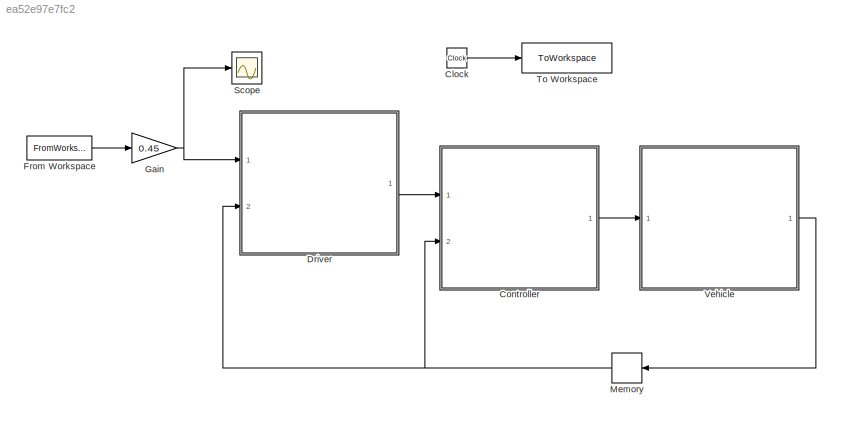
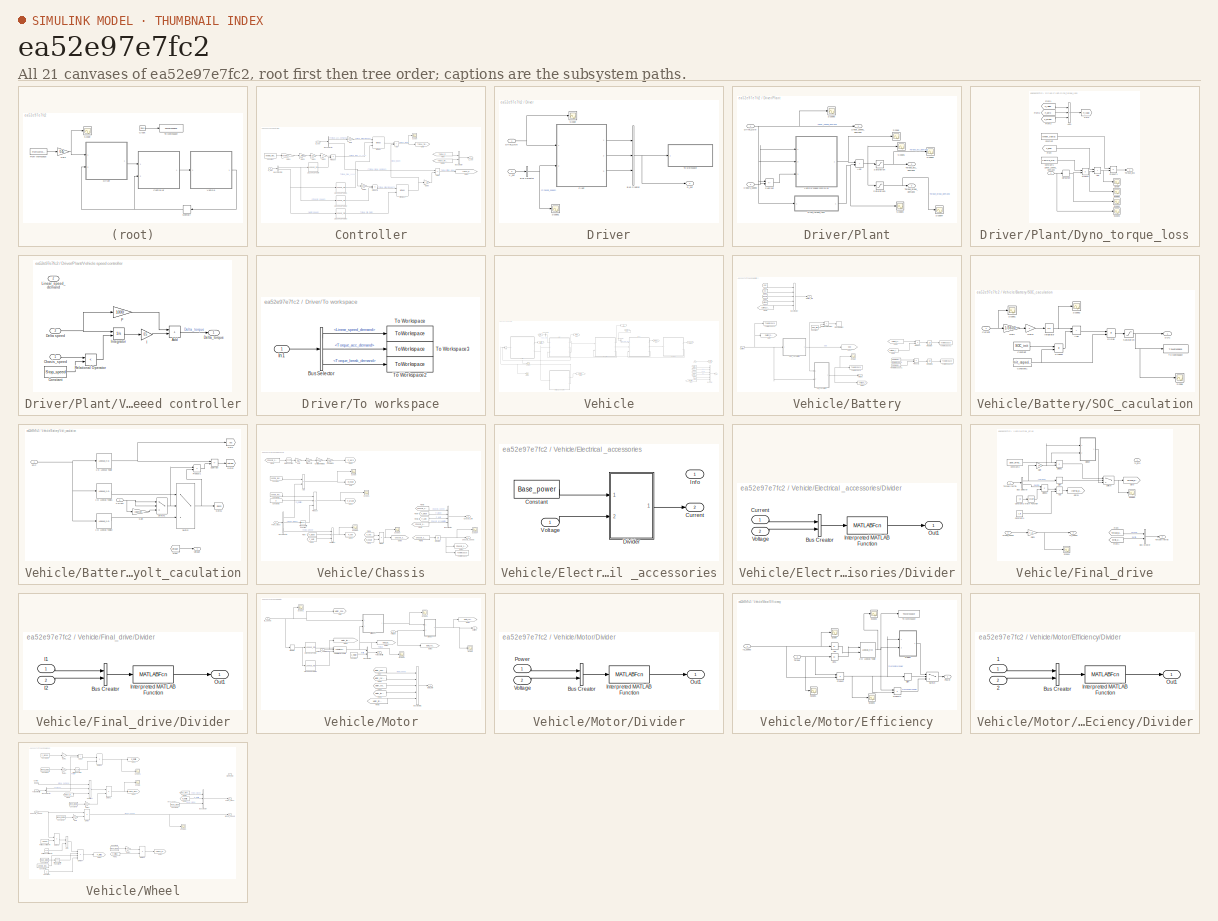
[diagram: thumbnail index - all 21 canvases of the model, root first then tree order]
MODEL slx_ea52e97e7fc2
KIND model
CONFIG AbsTol = auto
CONFIG EnableMultiTasking = off
CONFIG FixedStep = 0.01
CONFIG MaxStep = auto
CONFIG MinStep = auto
CONFIG RelTol = 1e-3
CONFIG SampleTimeConstraint = Unconstrained
CONFIG SolverName = FixedStepAuto
CONFIG StartTime = 0.0
CONFIG StopTime = 10.0
WORKSPACE source: external: MAT-File  (data not in archive)
BLOCK [Clock] Clock
BLOCK [SubSystem] Controller
  Ports = [2, 1]
  RequestExecContextInheritance = off
BLOCK [Lookup_n-D] Controller/1-D Lookup Table
  BreakpointsForDimension1 = f_tire_speed
  InputPortMap = u0
  InternalRulePriority = Speed
  NumberOfTableDimensions = 1
  Ports = [1, 1]
  RndMeth = Simplest
  Table = f_tire_friction
BLOCK [Lookup_n-D] Controller/1-D Lookup Table1
  BreakpointsForDimension1 = Torque_curve_speed
  InputPortMap = u0
  InternalRulePriority = Speed
  NumberOfTableDimensions = 1
  Ports = [1, 1]
  RndMeth = Simplest
  Table = Torque_curve_torque
BLOCK [Lookup_n-D] Controller/1-D Lookup Table2
  BreakpointsForDimension1 = Regen_speed
  InputPortMap = u0
  InternalRulePriority = Speed
  NumberOfTableDimensions = 1
  Ports = [1, 1]
  RndMeth = Simplest
  Table = Regen_fraction
BLOCK [Lookup_n-D] Controller/1-D Lookup Table3
  BreakpointsForDimension1 = Torque_curve_speed
  InputPortMap = u0
  InternalRulePriority = Speed
  NumberOfTableDimensions = 1
  Ports = [1, 1]
  RndMeth = Simplest
  Table = -Torque_curve_torque
BLOCK [Sum] Controller/Add
  IconShape = rectangular
  Ports = [2, 1]
BLOCK [Sum] Controller/Add1
  IconShape = rectangular
  Inputs = +-
  Ports = [2, 1]
BLOCK [BusCreator] Controller/Bus Creator
  DisplayOption = bar
  InheritFromInputs = on
  Inputs = 2
  Ports = [2, 1]
BLOCK [BusSelector] Controller/Bus Selector
  OutputSignals = Torque_acc_demand,Torque_break_demand
  Ports = [1, 2]
BLOCK [BusSelector] Controller/Bus Selector1
  OutputSignals = Chassis.Chassis_speed,Motor.Motor_speed
  Ports = [1, 2]
BLOCK [Outport] Controller/C_out
BLOCK [Constant] Controller/Constant
  Value = Vehicle_weight
BLOCK [Inport] Controller/D_out
BLOCK [From] Controller/From
  GotoTag = Torque_friction_break
BLOCK [From] Controller/From1
  GotoTag = Torque_motor
BLOCK [Gain] Controller/Gain
  Gain = 1/f_d
BLOCK [Gain] Controller/Gain1
  Gain = 1/f_d
BLOCK [Gain] Controller/Gain2
  Gain = g
BLOCK [Gain] Controller/Gain3
  Gain = r_mass
BLOCK [Gain] Controller/Gain4
  Gain = Wheel_radius
BLOCK [Gain] Controller/Gain5
  Gain = 1/f_d
BLOCK [Gain] Controller/Gain6
  Gain = f_d
BLOCK [Goto] Controller/Goto
  GotoTag = Torque_motor
BLOCK [Goto] Controller/Goto1
  GotoTag = Torque_friction_break
BLOCK [MinMax] Controller/MinMax
  Inputs = 3
  Ports = [3, 1]
BLOCK [MinMax] Controller/MinMax1
  Function = max
  Inputs = 2
  Ports = [2, 1]
BLOCK [Product] Controller/Product
  Ports = [2, 1]
BLOCK [Product] Controller/Product1
  Ports = [2, 1]
BLOCK [Scope] Controller/Scope
  Floating = off
  NumInputPorts = 1
  Ports = [1]
  ScopeSpecificationString = Simulink.scopes.TimeScopeBlockCfg('CurrentConfiguration', extmgr.ConfigurationSet(extmgr.Configuration('Core','General UI',true),extmgr.Configuration('Core','Source UI',true),extmgr.Configuration('Sources','WiredSimulink',true,'DataLoggingVariableName','ScopeData8'),extmgr.Configuration('Visuals','Time Domain',true,'SerializedDisplays',{struct('MinYLimReal','-444.63764','MaxYLimReal','542.73752','...<+1385ch>
BLOCK [Inport] Controller/V_out
  Port = 2
BLOCK [SubSystem] Driver
  Ports = [2, 1]
  RequestExecContextInheritance = off
BLOCK [BusCreator] Driver/Bus Creator
  DisplayOption = bar
  InheritFromInputs = on
  Inputs = 3
  Ports = [3, 1]
BLOCK [BusSelector] Driver/Bus Selector
  OutputSignals = Chassis.Chassis_speed
  Ports = [1, 1]
BLOCK [Outport] Driver/D_out
BLOCK [Inport] Driver/Drive_cycle
BLOCK [SubSystem] Driver/Plant
  Ports = [2, 3]
  RequestExecContextInheritance = off
BLOCK [Sum] Driver/Plant/Add
  IconShape = rectangular
  Ports = [2, 1]
BLOCK [Inport] Driver/Plant/Chasis_speed
  Port = 2
BLOCK [Inport] Driver/Plant/Drive_cycle
BLOCK [SubSystem] Driver/Plant/Dyno_torque_loss
  Ports = [1, 1]
  RequestExecContextInheritance = off
BLOCK [Sum] Driver/Plant/Dyno_torque_loss/Add
  IconShape = rectangular
  Ports = [2, 1]
BLOCK [Sum] Driver/Plant/Dyno_torque_loss/Add1
  IconShape = rectangular
  Inputs = +++
  Ports = [3, 1]
BLOCK [Constant] Driver/Plant/Dyno_torque_loss/Constant
  Value = Wheel_radius
BLOCK [Constant] Driver/Plant/Dyno_torque_loss/Constant1
  Value = Vehicle_weight
BLOCK [Derivative] Driver/Plant/Dyno_torque_loss/Derivative
BLOCK [From] Driver/Plant/Dyno_torque_loss/From
  GotoTag = F_load
BLOCK [From] Driver/Plant/Dyno_torque_loss/From1
  GotoTag = F_rolling
  TagVisibility = global
BLOCK [From] Driver/Plant/Dyno_torque_loss/From2
  GotoTag = F_aero
  TagVisibility = global
BLOCK [From] Driver/Plant/Dyno_torque_loss/From3
  GotoTag = F_grade
  TagVisibility = global
BLOCK [Goto] Driver/Plant/Dyno_torque_loss/Goto
  GotoTag = F_load
BLOCK [Inport] Driver/Plant/Dyno_torque_loss/Linear_speed_demand
BLOCK [Product] Driver/Plant/Dyno_torque_loss/Product
  Ports = [2, 1]
BLOCK [Product] Driver/Plant/Dyno_torque_loss/Product1
  Ports = [2, 1]
BLOCK [Scope] Driver/Plant/Dyno_torque_loss/Scope
  Floating = off
  NumInputPorts = 1
  Ports = [1]
  ScopeSpecificationString = Simulink.scopes.TimeScopeBlockCfg('CurrentConfiguration', extmgr.ConfigurationSet(extmgr.Configuration('Core','General UI',true),extmgr.Configuration('Core','Source UI',true),extmgr.Configuration('Sources','WiredSimulink',true,'DataLoggingVariableName','ScopeData9'),extmgr.Configuration('Visuals','Time Domain',true),extmgr.Configuration('Tools','Plot Navigation',true),extmgr.Configuration('Tools',...<+40ch>
BLOCK [Scope] Driver/Plant/Dyno_torque_loss/Scope1
  Floating = off
  NumInputPorts = 1
  Ports = [1]
  ScopeSpecificationString = Simulink.scopes.TimeScopeBlockCfg('CurrentConfiguration', extmgr.ConfigurationSet(extmgr.Configuration('Core','General UI',true),extmgr.Configuration('Core','Source UI',true),extmgr.Configuration('Sources','WiredSimulink',true,'DataLoggingVariableName','ScopeData10'),extmgr.Configuration('Visuals','Time Domain',true),extmgr.Configuration('Tools','Plot Navigation',true),extmgr.Configuration('Tools'...<+41ch>
BLOCK [Scope] Driver/Plant/Dyno_torque_loss/Scope2
  Floating = off
  NumInputPorts = 1
  Ports = [1]
  ScopeSpecificationString = Simulink.scopes.TimeScopeBlockCfg('CurrentConfiguration', extmgr.ConfigurationSet(extmgr.Configuration('Core','General UI',true),extmgr.Configuration('Core','Source UI',true),extmgr.Configuration('Sources','WiredSimulink',true,'DataLoggingVariableName','ScopeData11'),extmgr.Configuration('Visuals','Time Domain',true,'SerializedDisplays',{struct('MinYLimReal','-19.68581','MaxYLimReal','6.21731','YL...<+1405ch>
BLOCK [Scope] Driver/Plant/Dyno_torque_loss/Scope3
  Floating = off
  NumInputPorts = 1
  Ports = [1]
  ScopeSpecificationString = Simulink.scopes.TimeScopeBlockCfg('CurrentConfiguration', extmgr.ConfigurationSet(extmgr.Configuration('Core','General UI',true),extmgr.Configuration('Core','Source UI',true),extmgr.Configuration('Sources','WiredSimulink',true,'DataLoggingVariableName','ScopeData12'),extmgr.Configuration('Visuals','Time Domain',true,'SerializedDisplays',{struct('MinYLimReal','-4.50748','MaxYLimReal','40.56733','YL...<+1414ch>
BLOCK [Outport] Driver/Plant/Dyno_torque_loss/Torque_loss
BLOCK [Outport] Driver/Plant/Linear_speed_demand
BLOCK [Saturate] Driver/Plant/Saturation
  LowerLimit = 0
  UpperLimit = inf
BLOCK [Saturate] Driver/Plant/Saturation1
  LowerLimit = -inf
  UpperLimit = 0
BLOCK [Scope] Driver/Plant/Scope
  Floating = off
  NumInputPorts = 1
  Ports = [1]
  ScopeSpecificationString = Simulink.scopes.TimeScopeBlockCfg('CurrentConfiguration', extmgr.ConfigurationSet(extmgr.Configuration('Core','General UI',true),extmgr.Configuration('Core','Source UI',true),extmgr.Configuration('Sources','WiredSimulink',true,'DataLoggingVariableName','ScopeData1'),extmgr.Configuration('Visuals','Time Domain',true,'SerializedDisplays',{struct('MinYLimReal','-180.58051','MaxYLimReal','444.91862','...<+1425ch>
BLOCK [Scope] Driver/Plant/Scope1
  Floating = off
  NumInputPorts = 1
  Ports = [1]
  ScopeSpecificationString = Simulink.scopes.TimeScopeBlockCfg('CurrentConfiguration', extmgr.ConfigurationSet(extmgr.Configuration('Core','General UI',true),extmgr.Configuration('Core','Source UI',true),extmgr.Configuration('Sources','WiredSimulink',true,'DataLoggingVariableName','ScopeData2'),extmgr.Configuration('Visuals','Time Domain',true,'SerializedDisplays',{struct('MinYLimReal','-7984.83576','MaxYLimReal','2647.52223'...<+1384ch>
BLOCK [Scope] Driver/Plant/Scope2
  Floating = off
  NumInputPorts = 1
  Ports = [1]
  ScopeSpecificationString = Simulink.scopes.TimeScopeBlockCfg('CurrentConfiguration', extmgr.ConfigurationSet(extmgr.Configuration('Core','General UI',true),extmgr.Configuration('Core','Source UI',true),extmgr.Configuration('Sources','WiredSimulink',true,'DataLoggingVariableName','ScopeData3'),extmgr.Configuration('Visuals','Time Domain',true,'SerializedDisplays',{struct('MinYLimReal','-198.0358','MaxYLimReal','1782.32224','...<+1392ch>
BLOCK [Scope] Driver/Plant/Scope3
  Floating = off
  NumInputPorts = 1
  Ports = [1]
  ScopeSpecificationString = Simulink.scopes.TimeScopeBlockCfg('CurrentConfiguration', extmgr.ConfigurationSet(extmgr.Configuration('Core','General UI',true),extmgr.Configuration('Core','Source UI',true),extmgr.Configuration('Sources','WiredSimulink',true,'DataLoggingVariableName','ScopeData4'),extmgr.Configuration('Visuals','Time Domain',true,'SerializedDisplays',{struct('MinYLimReal','-7448.45098','MaxYLimReal','2383.74102'...<+1427ch>
BLOCK [Scope] Driver/Plant/Scope4
  Floating = off
  NumInputPorts = 1
  Ports = [1]
  ScopeSpecificationString = Simulink.scopes.TimeScopeBlockCfg('CurrentConfiguration', extmgr.ConfigurationSet(extmgr.Configuration('Core','General UI',true),extmgr.Configuration('Core','Source UI',true),extmgr.Configuration('Sources','WiredSimulink',true,'DataLoggingVariableName','ScopeData5'),extmgr.Configuration('Visuals','Time Domain',true,'SerializedDisplays',{struct('MinYLimReal','-7786.79995','MaxYLimReal','865.19999',...<+1398ch>
BLOCK [Scope] Driver/Plant/Scope5
  Floating = off
  NumInputPorts = 1
  Ports = [1]
  ScopeSpecificationString = Simulink.scopes.TimeScopeBlockCfg('CurrentConfiguration', extmgr.ConfigurationSet(extmgr.Configuration('Core','General UI',true),extmgr.Configuration('Core','Source UI',true),extmgr.Configuration('Sources','WiredSimulink',true,'DataLoggingVariableName','ScopeData1'),extmgr.Configuration('Visuals','Time Domain',true,'SerializedDisplays',{struct('MinYLimReal','-3.36397','MaxYLimReal','30.27577','YLa...<+1430ch>
BLOCK [Sum] Driver/Plant/Subtract
  IconShape = rectangular
  Inputs = +-
  Ports = [2, 1]
BLOCK [Outport] Driver/Plant/Torque_acc_demand
  Port = 2
BLOCK [Outport] Driver/Plant/Torque_break_demand
  Port = 3
BLOCK [SubSystem] Driver/Plant/Vehicle speed controller
  Ports = [3, 1]
  RequestExecContextInheritance = off
BLOCK [Sum] Driver/Plant/Vehicle speed controller/Add
  IconShape = rectangular
  Ports = [2, 1]
BLOCK [Inport] Driver/Plant/Vehicle speed controller/Chasis_speed
BLOCK [Constant] Driver/Plant/Vehicle speed controller/Constant
  Value = Stop_speed
BLOCK [Inport] Driver/Plant/Vehicle speed controller/Delta speed
  Port = 3
BLOCK [Outport] Driver/Plant/Vehicle speed controller/Delta_torque
BLOCK [Gain] Driver/Plant/Vehicle speed controller/I
  Gain = 0.5
BLOCK [Integrator] Driver/Plant/Vehicle speed controller/Integrator
  ExternalReset = either
  Ports = [2, 1]
BLOCK [Inport] Driver/Plant/Vehicle speed controller/Linear_speed_demand
  Port = 2
BLOCK [Gain] Driver/Plant/Vehicle speed controller/P
  Gain = 1000
BLOCK [RelationalOperator] Driver/Plant/Vehicle speed controller/Relational Operator
  InputSameDT = off
  Operator = <
  OutDataTypeStr = boolean
  Ports = [2, 1]
  RndMeth = Simplest
BLOCK [Scope] Driver/Scope
  Floating = off
  NumInputPorts = 1
  Ports = [1]
  ScopeSpecificationString = Simulink.scopes.TimeScopeBlockCfg('CurrentConfiguration', extmgr.ConfigurationSet(extmgr.Configuration('Core','General UI',true),extmgr.Configuration('Core','Source UI',true),extmgr.Configuration('Sources','WiredSimulink',true,'DataLoggingVariableName','ScopeData22'),extmgr.Configuration('Visuals','Time Domain',true,'SerializedDisplays',{struct('MinYLimReal','45.89568','MaxYLimReal','46.06053','YL...<+1427ch>
BLOCK [Scope] Driver/Scope1
  Floating = off
  NumInputPorts = 1
  Ports = [1]
  ScopeSpecificationString = Simulink.scopes.TimeScopeBlockCfg('CurrentConfiguration', extmgr.ConfigurationSet(extmgr.Configuration('Core','General UI',true),extmgr.Configuration('Core','Source UI',true),extmgr.Configuration('Sources','WiredSimulink',true,'DataLoggingVariableName','ScopeData23'),extmgr.Configuration('Visuals','Time Domain',true,'SerializedDisplays',{struct('MinYLimReal','-4.05274','MaxYLimReal','36.4705','YLa...<+1408ch>
BLOCK [SubSystem] Driver/To workspace
  Ports = [1]
  RequestExecContextInheritance = off
BLOCK [BusSelector] Driver/To workspace/Bus Selector
  OutputSignals = Linear_speed_demand,Torque_acc_demand,Torque_break_demand
  Ports = [1, 3]
BLOCK [Inport] Driver/To workspace/In1
BLOCK [ToWorkspace] Driver/To workspace/To Workspace
  Decimation = 10
  MaxDataPoints = inf
  Ports = [1]
  SampleTime = 0.1
  Save2DSignal = 2-D array (concatenate along first dimension)
  VariableName = Linear_speed_demand
BLOCK [ToWorkspace] Driver/To workspace/To Workspace2
  Decimation = 10
  MaxDataPoints = inf
  Ports = [1]
  SampleTime = -1
  VariableName = Torque_break_demand
BLOCK [ToWorkspace] Driver/To workspace/To Workspace3
  Decimation = 10
  MaxDataPoints = inf
  Ports = [1]
  SampleTime = -1
  VariableName = Torque_acc_demand
BLOCK [Inport] Driver/V_out
  Port = 2
BLOCK [FromWorkspace] From Workspace
  VariableName = Drive_cycle
BLOCK [Gain] Gain
  Gain = 0.45
BLOCK [Memory] Memory
  InheritSampleTime = on
  LinearizeAsDelay = on
  LinearizeMemory = on
BLOCK [Scope] Scope
  Floating = off
  NumInputPorts = 1
  Ports = [1]
  ScopeSpecificationString = Simulink.scopes.TimeScopeBlockCfg('CurrentConfiguration', extmgr.ConfigurationSet(extmgr.Configuration('Core','General UI',true),extmgr.Configuration('Core','Source UI',true),extmgr.Configuration('Sources','WiredSimulink',true,'DataLoggingVariableName','ScopeData7'),extmgr.Configuration('Visuals','Time Domain',true,'SerializedDisplays',{struct('MinYLimReal','-4.50748','MaxYLimReal','80.133','YLabe...<+1435ch>
BLOCK [ToWorkspace] To Workspace
  FixptAsFi = on
  MaxDataPoints = inf
  Ports = [1]
  SampleTime = -1
  SaveFormat = Timeseries
  VariableName = Sim_time
BLOCK [SubSystem] Vehicle
  Ports = [1, 1]
  RequestExecContextInheritance = off
BLOCK [Sum] Vehicle/Add
  IconShape = rectangular
  Ports = [2, 1]
BLOCK [SubSystem] Vehicle/Battery
  Ports = [1, 2]
  RequestExecContextInheritance = off
BLOCK [Outport] Vehicle/Battery/Battery_info
BLOCK [BusCreator] Vehicle/Battery/Bus Creator
  DisplayOption = bar
  InheritFromInputs = on
  Inputs = 5
  Ports = [5, 1]
BLOCK [Constant] Vehicle/Battery/Constant
  Value = SOC_min
BLOCK [Inport] Vehicle/Battery/Current
BLOCK [From] Vehicle/Battery/From
  GotoTag = SOC
BLOCK [FromWorkspace] Vehicle/Battery/From Workspace
  VariableName = I
BLOCK [FromWorkspace] Vehicle/Battery/From Workspace1
  VariableName = V
BLOCK [From] Vehicle/Battery/From1
  GotoTag = Current_needed
BLOCK [From] Vehicle/Battery/From2
  GotoTag = Current_needed
BLOCK [From] Vehicle/Battery/From3
  GotoTag = Voc
  TagVisibility = global
BLOCK [From] Vehicle/Battery/From4
  GotoTag = Voltage
  TagVisibility = global
BLOCK [From] Vehicle/Battery/From5
  GotoTag = Rohm
  TagVisibility = global
BLOCK [From] Vehicle/Battery/From6
  GotoTag = Voltage_t
BLOCK [Goto] Vehicle/Battery/Goto
  GotoTag = Current_needed
BLOCK [Goto] Vehicle/Battery/Goto1
  GotoTag = SOC
BLOCK [Goto] Vehicle/Battery/Goto2
  GotoTag = Voltage_t
BLOCK [Integrator] Vehicle/Battery/Integrator
  Ports = [1, 1]
BLOCK [Integrator] Vehicle/Battery/Integrator1
  Ports = [1, 1]
BLOCK [Product] Vehicle/Battery/Product
  Ports = [2, 1]
BLOCK [Product] Vehicle/Battery/Product1
  Ports = [2, 1]
BLOCK [RelationalOperator] Vehicle/Battery/Relational Operator
  InputSameDT = off
  Operator = <
  OutDataTypeStr = boolean
  Ports = [2, 1]
  RndMeth = Simplest
BLOCK [SubSystem] Vehicle/Battery/SOC_caculation
  Ports = [1, 1]
  RequestExecContextInheritance = off
BLOCK [Sum] Vehicle/Battery/SOC_caculation/Add
  IconShape = rectangular
  Ports = [2, 1]
BLOCK [Constant] Vehicle/Battery/SOC_caculation/Constant
  Value = SOC_init
BLOCK [Constant] Vehicle/Battery/SOC_caculation/Constant1
  Value = Init_capacity
BLOCK [Inport] Vehicle/Battery/SOC_caculation/Current
BLOCK [Product] Vehicle/Battery/SOC_caculation/Divide
  Inputs = */
  Ports = [2, 1]
BLOCK [Gain] Vehicle/Battery/SOC_caculation/Gain
  Gain = 1/3600
BLOCK [Gain] Vehicle/Battery/SOC_caculation/Gain1
  Gain = -1
BLOCK [Integrator] Vehicle/Battery/SOC_caculation/Integrator
  Ports = [1, 1]
BLOCK [Product] Vehicle/Battery/SOC_caculation/Product
  Ports = [2, 1]
BLOCK [Outport] Vehicle/Battery/SOC_caculation/SOC
  NameLocation = top
BLOCK [Saturate] Vehicle/Battery/SOC_caculation/Saturation
  LowerLimit = 0
  UpperLimit = 1
BLOCK [Scope] Vehicle/Battery/SOC_caculation/Scope
  Floating = off
  NumInputPorts = 1
  Ports = [1]
  ScopeSpecificationString = Simulink.scopes.TimeScopeBlockCfg('CurrentConfiguration', extmgr.ConfigurationSet(extmgr.Configuration('Core','General UI',true),extmgr.Configuration('Core','Source UI',true),extmgr.Configuration('Sources','WiredSimulink',true,'DataLoggingVariableName','ScopeData6'),extmgr.Configuration('Visuals','Time Domain',true,'SerializedDisplays',{struct('MinYLimReal','-0.0687','MaxYLimReal','1.1183','YLabel...<+1392ch>
BLOCK [Scope] Vehicle/Battery/SOC_caculation/Scope1
  Floating = off
  NumInputPorts = 1
  Ports = [1]
  ScopeSpecificationString = Simulink.scopes.TimeScopeBlockCfg('CurrentConfiguration', extmgr.ConfigurationSet(extmgr.Configuration('Core','General UI',true),extmgr.Configuration('Core','Source UI',true),extmgr.Configuration('Sources','WiredSimulink',true,'DataLoggingVariableName','ScopeData24'),extmgr.Configuration('Visuals','Time Domain',true,'SerializedDisplays',{struct('MinYLimReal','-18.80834','MaxYLimReal','44.43856','Y...<+1404ch>
BLOCK [Scope] Vehicle/Battery/SOC_caculation/Scope2
  Floating = off
  NumInputPorts = 1
  Ports = [1]
  ScopeSpecificationString = Simulink.scopes.TimeScopeBlockCfg('CurrentConfiguration', extmgr.ConfigurationSet(extmgr.Configuration('Core','General UI',true),extmgr.Configuration('Core','Source UI',true),extmgr.Configuration('Sources','WiredSimulink',true,'DataLoggingVariableName','ScopeData26'),extmgr.Configuration('Visuals','Time Domain',true,'SerializedDisplays',{struct('MinYLimReal','-57.6882','MaxYLimReal','6.4098','YLab...<+1399ch>
BLOCK [ToWorkspace] Vehicle/Battery/SOC_caculation/To Workspace
  FixptAsFi = on
  MaxDataPoints = inf
  Ports = [1]
  SampleTime = 0.1
  VariableName = SOC
BLOCK [Scope] Vehicle/Battery/Scope
  Floating = off
  NumInputPorts = 1
  Ports = [1]
  ScopeSpecificationString = Simulink.scopes.TimeScopeBlockCfg('CurrentConfiguration', extmgr.ConfigurationSet(extmgr.Configuration('Core','General UI',true),extmgr.Configuration('Core','Source UI',true),extmgr.Configuration('Sources','WiredSimulink',true,'DataLoggingVariableName','ScopeData25','DataLoggingSaveFormat','Array','DataLoggingLimitDataPoints',true,'DataLoggingDecimation','1'),extmgr.Configuration('Visuals','Time D...<+1654ch>
BLOCK [Stop] Vehicle/Battery/Stop Simulation
BLOCK [ToWorkspace] Vehicle/Battery/To Workspace
  FixptAsFi = on
  MaxDataPoints = inf
  Ports = [1]
  SampleTime = 0.1
  VariableName = Battery_volage
BLOCK [ToWorkspace] Vehicle/Battery/To Workspace1
  FixptAsFi = on
  MaxDataPoints = inf
  Ports = [1]
  SampleTime = 0.1
  VariableName = Battery_current
BLOCK [ToWorkspace] Vehicle/Battery/To Workspace2
  FixptAsFi = on
  MaxDataPoints = inf
  Ports = [1]
  SampleTime = -1
  VariableName = engergy
BLOCK [ToWorkspace] Vehicle/Battery/To Workspace3
  FixptAsFi = on
  MaxDataPoints = inf
  Ports = [1]
  SampleTime = -1
  VariableName = logged_engergy
BLOCK [SubSystem] Vehicle/Battery/Volt_caculation
  Ports = [2, 1]
  RequestExecContextInheritance = off
BLOCK [Lookup_n-D] Vehicle/Battery/Volt_caculation/1-D Lookup Table
  BreakpointsForDimension1 = OCV_SOC
  InputPortMap = u0
  InternalRulePriority = Speed
  NumberOfTableDimensions = 1
  Ports = [1, 1]
  RndMeth = Simplest
  Table = OCV
BLOCK [Lookup_n-D] Vehicle/Battery/Volt_caculation/1-D Lookup Table1
  BreakpointsForDimension1 = OCV_SOC
  InputPortMap = u0
  InternalRulePriority = Speed
  NumberOfTableDimensions = 1
  Ports = [1, 1]
  RndMeth = Simplest
  Table = R_chg
BLOCK [Lookup_n-D] Vehicle/Battery/Volt_caculation/1-D Lookup Table2
  BreakpointsForDimension1 = OCV_SOC
  InputPortMap = u0
  InternalRulePriority = Speed
  NumberOfTableDimensions = 1
  Ports = [1, 1]
  RndMeth = Simplest
  Table = R_dis
BLOCK [Inport] Vehicle/Battery/Volt_caculation/Current
  Port = 2
BLOCK [From] Vehicle/Battery/Volt_caculation/From
  GotoTag = Voltage
  TagVisibility = global
BLOCK [Gain] Vehicle/Battery/Volt_caculation/Gain
  Gain = columbeff
BLOCK [Goto] Vehicle/Battery/Volt_caculation/Goto
  GotoTag = Voc
  TagVisibility = global
BLOCK [Goto] Vehicle/Battery/Volt_caculation/Goto1
  GotoTag = Rohm
  TagVisibility = global
BLOCK [Goto] Vehicle/Battery/Volt_caculation/Goto2
  GotoTag = Voltage
  TagVisibility = global
BLOCK [Product] Vehicle/Battery/Volt_caculation/Product1
  Ports = [2, 1]
BLOCK [Inport] Vehicle/Battery/Volt_caculation/SOC
BLOCK [Sum] Vehicle/Battery/Volt_caculation/Subtract
  IconShape = rectangular
  Inputs = +-
  Ports = [2, 1]
BLOCK [Switch] Vehicle/Battery/Volt_caculation/Switch
  Criteria = u2 > Threshold
  InputSameDT = off
  SaturateOnIntegerOverflow = off
BLOCK [Switch] Vehicle/Battery/Volt_caculation/Switch1
  Criteria = u2 > Threshold
  InputSameDT = off
  SaturateOnIntegerOverflow = off
BLOCK [Outport] Vehicle/Battery/Volt_caculation/Voltage
BLOCK [Outport] Vehicle/Battery/Voltage
  NameLocation = right
  Port = 2
BLOCK [BusCreator] Vehicle/Bus Creator
  DisplayOption = bar
  InheritFromInputs = on
  Inputs = 6
  Ports = [6, 1]
BLOCK [BusSelector] Vehicle/Bus Selector
  OutputSignals = Torque_friction_break
  Ports = [1, 1]
BLOCK [BusSelector] Vehicle/Bus Selector1
  OutputSignals = Torque_motor
  Ports = [1, 1]
BLOCK [Inport] Vehicle/C_out
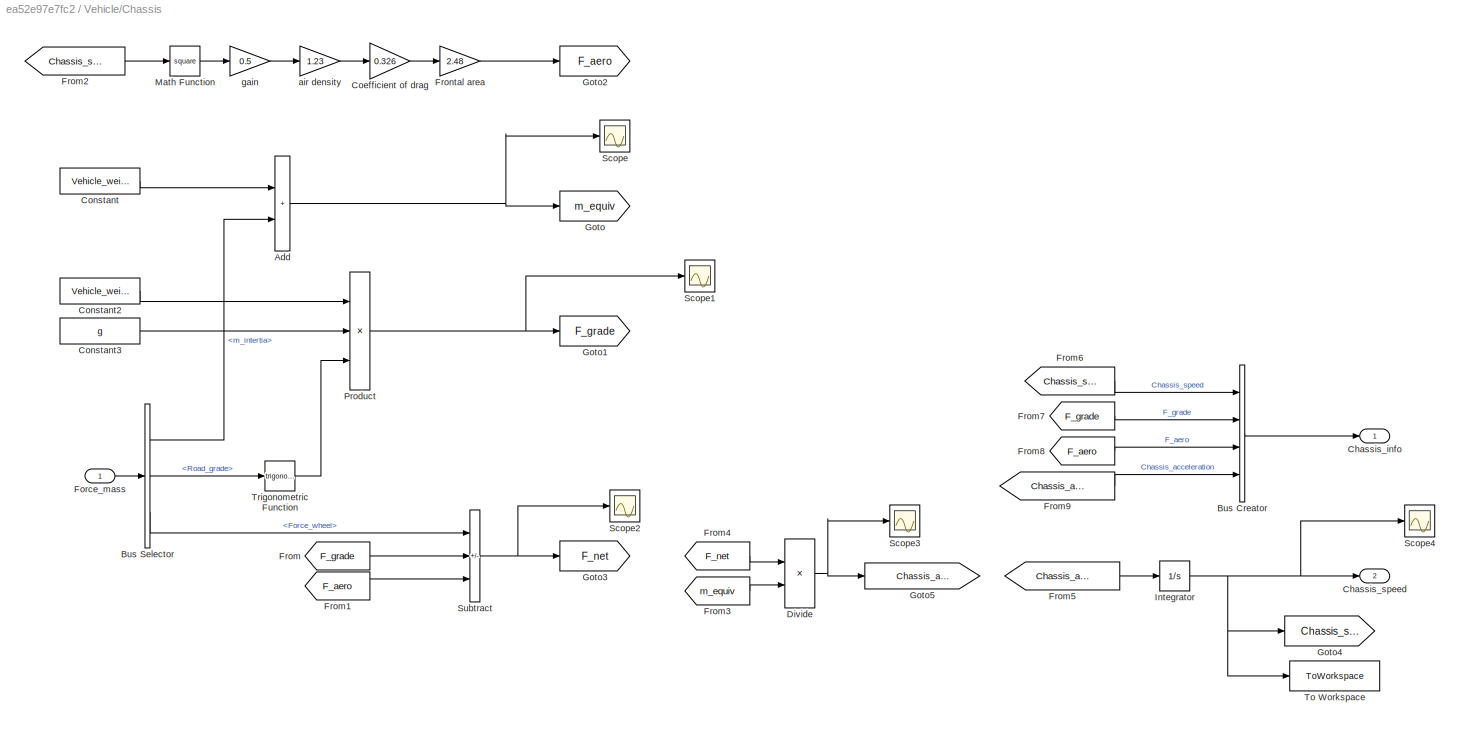
BLOCK [SubSystem] Vehicle/Chassis
  Ports = [1, 2]
  RequestExecContextInheritance = off
BLOCK [Sum] Vehicle/Chassis/Add
  IconShape = rectangular
  Ports = [2, 1]
BLOCK [BusCreator] Vehicle/Chassis/Bus Creator
  DisplayOption = bar
  InheritFromInputs = on
  Inputs = 4
  Ports = [4, 1]
BLOCK [BusSelector] Vehicle/Chassis/Bus Selector
  OutputSignals = m_intertia,Road_grade,Force_wheel
  Ports = [1, 3]
BLOCK [Outport] Vehicle/Chassis/Chassis_info
BLOCK [Outport] Vehicle/Chassis/Chassis_speed
  Port = 2
BLOCK [Gain] Vehicle/Chassis/Coefficient of drag
  Gain = 0.326
BLOCK [Constant] Vehicle/Chassis/Constant
  Value = Vehicle_weight
BLOCK [Constant] Vehicle/Chassis/Constant2
  Value = Vehicle_weight
BLOCK [Constant] Vehicle/Chassis/Constant3
  Value = g
BLOCK [Product] Vehicle/Chassis/Divide
  Inputs = */
  Ports = [2, 1]
BLOCK [Inport] Vehicle/Chassis/Force_mass
BLOCK [From] Vehicle/Chassis/From
  GotoTag = F_grade
  TagVisibility = global
BLOCK [From] Vehicle/Chassis/From1
  GotoTag = F_aero
  TagVisibility = global
BLOCK [From] Vehicle/Chassis/From2
  GotoTag = Chassis_speed
  TagVisibility = global
BLOCK [From] Vehicle/Chassis/From3
  GotoTag = m_equiv
  TagVisibility = global
BLOCK [From] Vehicle/Chassis/From4
  GotoTag = F_net
  TagVisibility = global
BLOCK [From] Vehicle/Chassis/From5
  GotoTag = Chassis_acceleration
  TagVisibility = global
BLOCK [From] Vehicle/Chassis/From6
  GotoTag = Chassis_speed
  TagVisibility = global
BLOCK [From] Vehicle/Chassis/From7
  GotoTag = F_grade
  TagVisibility = global
BLOCK [From] Vehicle/Chassis/From8
  GotoTag = F_aero
  TagVisibility = global
BLOCK [From] Vehicle/Chassis/From9
  GotoTag = Chassis_acceleration
  TagVisibility = global
BLOCK [Gain] Vehicle/Chassis/Frontal area
  Gain = 2.48
BLOCK [Goto] Vehicle/Chassis/Goto
  GotoTag = m_equiv
  TagVisibility = global
BLOCK [Goto] Vehicle/Chassis/Goto1
  GotoTag = F_grade
  TagVisibility = global
BLOCK [Goto] Vehicle/Chassis/Goto2
  GotoTag = F_aero
  TagVisibility = global
BLOCK [Goto] Vehicle/Chassis/Goto3
  GotoTag = F_net
  TagVisibility = global
BLOCK [Goto] Vehicle/Chassis/Goto4
  GotoTag = Chassis_speed
  TagVisibility = global
BLOCK [Goto] Vehicle/Chassis/Goto5
  GotoTag = Chassis_acceleration
  TagVisibility = global
BLOCK [Integrator] Vehicle/Chassis/Integrator
  Ports = [1, 1]
BLOCK [Math] Vehicle/Chassis/Math Function
  Operator = square
  Ports = [1, 1]
BLOCK [Product] Vehicle/Chassis/Product
  Inputs = 3
  Ports = [3, 1]
BLOCK [Scope] Vehicle/Chassis/Scope
  Floating = off
  NumInputPorts = 1
  Ports = [1]
  ScopeSpecificationString = Simulink.scopes.TimeScopeBlockCfg('CurrentConfiguration', extmgr.ConfigurationSet(extmgr.Configuration('Core','General UI',true),extmgr.Configuration('Core','Source UI',true),extmgr.Configuration('Sources','WiredSimulink',true,'DataLoggingVariableName','ScopeData17'),extmgr.Configuration('Visuals','Time Domain',true,'SerializedDisplays',{struct('MinYLimReal','559.60627','MaxYLimReal','2559.60627',...<+1416ch>
BLOCK [Scope] Vehicle/Chassis/Scope1
  Floating = off
  NumInputPorts = 1
  Ports = [1]
  ScopeSpecificationString = Simulink.scopes.TimeScopeBlockCfg('CurrentConfiguration', extmgr.ConfigurationSet(extmgr.Configuration('Core','General UI',true),extmgr.Configuration('Core','Source UI',true),extmgr.Configuration('Sources','WiredSimulink',true,'DataLoggingVariableName','ScopeData18'),extmgr.Configuration('Visuals','Time Domain',true,'SerializedDisplays',{struct('MinYLimReal','-1.00000','MaxYLimReal','1.00000','YLa...<+1402ch>
BLOCK [Scope] Vehicle/Chassis/Scope2
  Floating = off
  NumInputPorts = 1
  Ports = [1]
  ScopeSpecificationString = Simulink.scopes.TimeScopeBlockCfg('CurrentConfiguration', extmgr.ConfigurationSet(extmgr.Configuration('Core','General UI',true),extmgr.Configuration('Core','Source UI',true),extmgr.Configuration('Sources','WiredSimulink',true,'DataLoggingVariableName','ScopeData19'),extmgr.Configuration('Visuals','Time Domain',true,'SerializedDisplays',{struct('MinYLimReal','-23023.54169','MaxYLimReal','9471.8150...<+1445ch>
BLOCK [Scope] Vehicle/Chassis/Scope3
  Floating = off
  NumInputPorts = 1
  Ports = [1]
  ScopeSpecificationString = Simulink.scopes.TimeScopeBlockCfg('CurrentConfiguration', extmgr.ConfigurationSet(extmgr.Configuration('Core','General UI',true),extmgr.Configuration('Core','Source UI',true),extmgr.Configuration('Sources','WiredSimulink',true,'DataLoggingVariableName','ScopeData20'),extmgr.Configuration('Visuals','Time Domain',true,'SerializedDisplays',{struct('MinYLimReal','-4.44527','MaxYLimReal','4.66113','YLa...<+1366ch>
BLOCK [Scope] Vehicle/Chassis/Scope4
  Floating = off
  NumInputPorts = 1
  Ports = [1]
  ScopeSpecificationString = Simulink.scopes.TimeScopeBlockCfg('CurrentConfiguration', extmgr.ConfigurationSet(extmgr.Configuration('Core','General UI',true),extmgr.Configuration('Core','Source UI',true),extmgr.Configuration('Sources','WiredSimulink',true,'DataLoggingVariableName','ScopeData21'),extmgr.Configuration('Visuals','Time Domain',true,'SerializedDisplays',{struct('MinYLimReal','-4.05274','MaxYLimReal','36.4705','YLa...<+1401ch>
BLOCK [Sum] Vehicle/Chassis/Subtract
  IconShape = rectangular
  Inputs = +--
  Ports = [3, 1]
BLOCK [ToWorkspace] Vehicle/Chassis/To Workspace
  FixptAsFi = on
  MaxDataPoints = inf
  Ports = [1]
  SampleTime = 0.1
  VariableName = Chassis_speed
BLOCK [Trigonometry] Vehicle/Chassis/Trigonometric Function
  Ports = [1, 1]
BLOCK [Gain] Vehicle/Chassis/air density
  Gain = 1.23
BLOCK [Gain] Vehicle/Chassis/gain
  Gain = 0.5
BLOCK [SubSystem] Vehicle/Electrical _accessories
  Ports = [1, 2]
  RequestExecContextInheritance = off
BLOCK [Constant] Vehicle/Electrical _accessories/Constant
  Value = Base_power
BLOCK [Outport] Vehicle/Electrical _accessories/Current
  Port = 2
BLOCK [SubSystem] Vehicle/Electrical _accessories/Divider
  Ports = [2, 1]
  RequestExecContextInheritance = off
BLOCK [BusCreator] Vehicle/Electrical _accessories/Divider/Bus Creator
  DisplayOption = bar
  InheritFromInputs = on
  Inputs = 2
  Ports = [2, 1]
BLOCK [Inport] Vehicle/Electrical _accessories/Divider/Current
BLOCK [MATLABFcn] Vehicle/Electrical _accessories/Divider/Interpreted MATLAB Function
  MATLABFcn = myFunction
  Ports = [1, 1]
BLOCK [Outport] Vehicle/Electrical _accessories/Divider/Out1
BLOCK [Inport] Vehicle/Electrical _accessories/Divider/Voltage
  Port = 2
BLOCK [Outport] Vehicle/Electrical _accessories/Info
BLOCK [Inport] Vehicle/Electrical _accessories/Voltage
BLOCK [SubSystem] Vehicle/Final_drive
  Ports = [2, 3]
  RequestExecContextInheritance = off
BLOCK [Sum] Vehicle/Final_drive/Add
  IconShape = rectangular
  Ports = [2, 1]
BLOCK [BusCreator] Vehicle/Final_drive/Bus Creator
  DisplayOption = bar
  InheritFromInputs = on
  Inputs = 2
  Ports = [2, 1]
BLOCK [BusSelector] Vehicle/Final_drive/Bus Selector
  OutputSignals = Torque,Inertia
  Ports = [1, 2]
BLOCK [Constant] Vehicle/Final_drive/Constant2
  Value = gear_efficiency
BLOCK [Constant] Vehicle/Final_drive/Constant3
  Value = f_d
BLOCK [Constant] Vehicle/Final_drive/Constant4
  Value = J_fd
BLOCK [Product] Vehicle/Final_drive/Divide1
  Inputs = **
  Ports = [2, 1]
BLOCK [Product] Vehicle/Final_drive/Divide2
  Inputs = **
  Ports = [2, 1]
BLOCK [SubSystem] Vehicle/Final_drive/Divider
  Ports = [2, 1]
  RequestExecContextInheritance = off
BLOCK [BusCreator] Vehicle/Final_drive/Divider/Bus Creator
  DisplayOption = bar
  InheritFromInputs = on
  Inputs = 2
  Ports = [2, 1]
BLOCK [MATLABFcn] Vehicle/Final_drive/Divider/Interpreted MATLAB Function
  MATLABFcn = myFunction
  Ports = [1, 1]
BLOCK [Outport] Vehicle/Final_drive/Divider/Out1
BLOCK [Inport] Vehicle/Final_drive/Divider/l1
BLOCK [Inport] Vehicle/Final_drive/Divider/l2
  Port = 2
BLOCK [From] Vehicle/Final_drive/From
  GotoTag = Torquel_gear
BLOCK [From] Vehicle/Final_drive/From1
  GotoTag = Inertia_gear
BLOCK [Gain] Vehicle/Final_drive/Gain
  Gain = f_d
BLOCK [Gain] Vehicle/Final_drive/Gain1
  Gain = f_d
BLOCK [Goto] Vehicle/Final_drive/Goto
  GotoTag = Torquel_gear
BLOCK [Goto] Vehicle/Final_drive/Goto1
  GotoTag = Inertia_gear
BLOCK [Math] Vehicle/Final_drive/Math Function
  Operator = square
  Ports = [1, 1]
BLOCK [Scope] Vehicle/Final_drive/Scope1
  Floating = off
  NumInputPorts = 1
  Ports = [1]
  ScopeSpecificationString = Simulink.scopes.TimeScopeBlockCfg('CurrentConfiguration', extmgr.ConfigurationSet(extmgr.Configuration('Core','General UI',true),extmgr.Configuration('Core','Source UI',true),extmgr.Configuration('Sources','WiredSimulink',true,'DataLoggingVariableName','ScopeData5'),extmgr.Configuration('Visuals','Time Domain',true,'SerializedDisplays',{struct('MinYLimReal','-14.60973','MaxYLimReal','131.47259','Y...<+1403ch>
BLOCK [Scope] Vehicle/Final_drive/Scope2
  Floating = off
  NumInputPorts = 1
  Ports = [1]
  ScopeSpecificationString = Simulink.scopes.TimeScopeBlockCfg('CurrentConfiguration', extmgr.ConfigurationSet(extmgr.Configuration('Core','General UI',true),extmgr.Configuration('Core','Source UI',true),extmgr.Configuration('Sources','WiredSimulink',true,'DataLoggingVariableName','ScopeData6'),extmgr.Configuration('Visuals','Time Domain',true,'SerializedDisplays',{struct('MinYLimReal','-1774.90471','MaxYLimReal','2030.04363'...<+1416ch>
BLOCK [Signum] Vehicle/Final_drive/Sign
BLOCK [Switch] Vehicle/Final_drive/Switch
  Criteria = u2 > Threshold
  InputSameDT = off
  SaturateOnIntegerOverflow = off
BLOCK [Outport] Vehicle/Final_drive/Torque//Inertia
  Port = 2
BLOCK [Inport] Vehicle/Final_drive/Torque//Inertia 
BLOCK [Inport] Vehicle/Final_drive/Wheel_speed
  Port = 2
BLOCK [Outport] Vehicle/Final_drive/fd_info
BLOCK [Outport] Vehicle/Final_drive/fd_speed
  Port = 3
BLOCK [From] Vehicle/From
  GotoTag = Battery
BLOCK [From] Vehicle/From1
  GotoTag = Wheel
BLOCK [From] Vehicle/From2
  GotoTag = Chassis
BLOCK [From] Vehicle/From3
  GotoTag = Electrical_accessories
BLOCK [From] Vehicle/From4
  GotoTag = Motor
BLOCK [From] Vehicle/From5
  GotoTag = fd
BLOCK [From] Vehicle/From6
  GotoTag = Control
BLOCK [From] Vehicle/From7
  GotoTag = Control
BLOCK [Goto] Vehicle/Goto
  GotoTag = Control
BLOCK [Goto] Vehicle/Goto1
  GotoTag = Chassis
BLOCK [Goto] Vehicle/Goto2
  GotoTag = Wheel
BLOCK [Goto] Vehicle/Goto3
  GotoTag = fd
BLOCK [Goto] Vehicle/Goto4
  GotoTag = Motor
BLOCK [Goto] Vehicle/Goto5
  GotoTag = Electrical_accessories
BLOCK [Goto] Vehicle/Goto6
  GotoTag = Battery
BLOCK [SubSystem] Vehicle/Motor
  Ports = [3, 3]
  RequestExecContextInheritance = off
BLOCK [Lookup_n-D] Vehicle/Motor/1-D Lookup Table
  BreakpointsForDimension1 = Torque_curve_speed
  InputPortMap = u0
  InternalRulePriority = Speed
  NumberOfTableDimensions = 1
  Ports = [1, 1]
  RndMeth = Simplest
  Table = Torque_curve_torque
BLOCK [Lookup_n-D] Vehicle/Motor/1-D Lookup Table1
  BreakpointsForDimension1 = Torque_curve_speed
  InputPortMap = u0
  InternalRulePriority = Speed
  NumberOfTableDimensions = 1
  Ports = [1, 1]
  RndMeth = Simplest
  Table = -Torque_curve_torque
BLOCK [BusCreator] Vehicle/Motor/Bus Creator
  DisplayOption = bar
  InheritFromInputs = on
  Inputs = 2
  Ports = [2, 1]
BLOCK [BusCreator] Vehicle/Motor/Bus Creator1
  DisplayOption = bar
  InheritFromInputs = on
  Inputs = 5
  Ports = [5, 1]
BLOCK [Constant] Vehicle/Motor/Constant
  Value = J_motor
BLOCK [Outport] Vehicle/Motor/Current
  Port = 2
BLOCK [SubSystem] Vehicle/Motor/Divider
  Ports = [2, 1]
  RequestExecContextInheritance = off
BLOCK [BusCreator] Vehicle/Motor/Divider/Bus Creator
  DisplayOption = bar
  InheritFromInputs = on
  Inputs = 2
  Ports = [2, 1]
BLOCK [MATLABFcn] Vehicle/Motor/Divider/Interpreted MATLAB Function
  MATLABFcn = myFunction
  Ports = [1, 1]
BLOCK [Outport] Vehicle/Motor/Divider/Out1
BLOCK [Inport] Vehicle/Motor/Divider/Power
BLOCK [Inport] Vehicle/Motor/Divider/Voltage
  Port = 2
BLOCK [SubSystem] Vehicle/Motor/Efficiency
  Ports = [2, 1]
  RequestExecContextInheritance = off
BLOCK [Lookup_n-D] Vehicle/Motor/Efficiency/2-D Lookup Table
  BreakpointsForDimension1 = efficiency_torque
  BreakpointsForDimension2 = efficiency_speed
  InputPortMap = u0,u1
  InternalRulePriority = Speed
  Ports = [2, 1]
  RndMeth = Simplest
  Table = efficiency
BLOCK [Abs] Vehicle/Motor/Efficiency/Abs
  SaturateOnIntegerOverflow = off
BLOCK [Abs] Vehicle/Motor/Efficiency/Abs1
  SaturateOnIntegerOverflow = off
BLOCK [SubSystem] Vehicle/Motor/Efficiency/Divider
  Ports = [2, 1]
  RequestExecContextInheritance = off
BLOCK [Inport] Vehicle/Motor/Efficiency/Divider/1
BLOCK [Inport] Vehicle/Motor/Efficiency/Divider/2
  Port = 2
BLOCK [BusCreator] Vehicle/Motor/Efficiency/Divider/Bus Creator
  DisplayOption = bar
  InheritFromInputs = on
  Inputs = 2
  Ports = [2, 1]
BLOCK [MATLABFcn] Vehicle/Motor/Efficiency/Divider/Interpreted MATLAB Function
  MATLABFcn = myFunction
  Ports = [1, 1]
BLOCK [Outport] Vehicle/Motor/Efficiency/Divider/Out1
BLOCK [Outport] Vehicle/Motor/Efficiency/Power
BLOCK [Product] Vehicle/Motor/Efficiency/Product
  Ports = [2, 1]
BLOCK [Product] Vehicle/Motor/Efficiency/Product1
  Ports = [2, 1]
BLOCK [Scope] Vehicle/Motor/Efficiency/Scope
  Floating = off
  NumInputPorts = 1
  Ports = [1]
  ScopeSpecificationString = Simulink.scopes.TimeScopeBlockCfg('CurrentConfiguration', extmgr.ConfigurationSet(extmgr.Configuration('Core','General UI',true),extmgr.Configuration('Core','Source UI',true),extmgr.Configuration('Sources','WiredSimulink',true,'DataLoggingVariableName','ScopeData2'),extmgr.Configuration('Visuals','Time Domain',true,'SerializedDisplays',{struct('MinYLimReal','-14.60973','MaxYLimReal','131.47259','Y...<+1409ch>
BLOCK [Scope] Vehicle/Motor/Efficiency/Scope1
  Floating = off
  NumInputPorts = 1
  Ports = [1]
  ScopeSpecificationString = Simulink.scopes.TimeScopeBlockCfg('CurrentConfiguration', extmgr.ConfigurationSet(extmgr.Configuration('Core','General UI',true),extmgr.Configuration('Core','Source UI',true),extmgr.Configuration('Sources','WiredSimulink',true,'DataLoggingVariableName','ScopeData3'),extmgr.Configuration('Visuals','Time Domain',true,'SerializedDisplays',{struct('MinYLimReal','-444.63764','MaxYLimReal','542.73752','...<+1403ch>
BLOCK [Scope] Vehicle/Motor/Efficiency/Scope2
  Floating = off
  NumInputPorts = 1
  Ports = [1]
  ScopeSpecificationString = Simulink.scopes.TimeScopeBlockCfg('CurrentConfiguration', extmgr.ConfigurationSet(extmgr.Configuration('Core','General UI',true),extmgr.Configuration('Core','Source UI',true),extmgr.Configuration('Sources','WiredSimulink',true,'DataLoggingVariableName','ScopeData8'),extmgr.Configuration('Visuals','Time Domain',true,'SerializedDisplays',{struct('MinYLimReal','0.73942','MaxYLimReal','0.8452','YLabel...<+1398ch>
BLOCK [Scope] Vehicle/Motor/Efficiency/Scope3
  Floating = off
  NumInputPorts = 1
  Ports = [1]
  ScopeSpecificationString = Simulink.scopes.TimeScopeBlockCfg('CurrentConfiguration', extmgr.ConfigurationSet(extmgr.Configuration('Core','General UI',true),extmgr.Configuration('Core','Source UI',true),extmgr.Configuration('Sources','WiredSimulink',true,'DataLoggingVariableName','ScopeData9'),extmgr.Configuration('Visuals','Time Domain',true,'SerializedDisplays',{struct('MinYLimReal','-40842.63365','MaxYLimReal','38010.4121...<+1457ch>
BLOCK [Signum] Vehicle/Motor/Efficiency/Sign
BLOCK [Switch] Vehicle/Motor/Efficiency/Switch
  Criteria = u2 > Threshold
  InputSameDT = off
  SaturateOnIntegerOverflow = off
BLOCK [ToWorkspace] Vehicle/Motor/Efficiency/To Workspace
  FixptAsFi = on
  MaxDataPoints = inf
  Ports = [1]
  SampleTime = -1
  SaveFormat = Timeseries
  VariableName = Motor_efficiency
BLOCK [Inport] Vehicle/Motor/Efficiency/Torque
  Port = 2
BLOCK [Inport] Vehicle/Motor/Efficiency/fd_speed
  NameLocation = left
BLOCK [From] Vehicle/Motor/From
  GotoTag = Motor_speed
BLOCK [From] Vehicle/Motor/From1
  GotoTag = Motor_voltage
BLOCK [From] Vehicle/Motor/From2
  GotoTag = Motor_torque_out
BLOCK [From] Vehicle/Motor/From3
  GotoTag = Motor_torque_command
BLOCK [From] Vehicle/Motor/From4
  GotoTag = Motor_current
BLOCK [Goto] Vehicle/Motor/Goto
  GotoTag = Motor_speed
BLOCK [Goto] Vehicle/Motor/Goto1
  GotoTag = Motor_torque_command
BLOCK [Goto] Vehicle/Motor/Goto2
  GotoTag = Motor_torque_out
BLOCK [Goto] Vehicle/Motor/Goto3
  GotoTag = Motor_voltage
BLOCK [Goto] Vehicle/Motor/Goto4
  GotoTag = Motor_current
BLOCK [Memory] Vehicle/Motor/Memory
  InheritSampleTime = on
  LinearizeAsDelay = on
  LinearizeMemory = on
BLOCK [Outport] Vehicle/Motor/Motor_info
BLOCK [Reference] Vehicle/Motor/Saturation Dynamic  REF=simulink/Discontinuities/Saturation
Dynamic
  Ports = [3, 1]
  SourceBlock = simulink/Discontinuities/Saturation\nDynamic
  SourceProductBaseCode = SL
  SourceType = Saturation Dynamic
BLOCK [Scope] Vehicle/Motor/Scope
  Floating = off
  NumInputPorts = 1
  Ports = [1]
  ScopeSpecificationString = Simulink.scopes.TimeScopeBlockCfg('CurrentConfiguration', extmgr.ConfigurationSet(extmgr.Configuration('Core','General UI',true),extmgr.Configuration('Core','Source UI',true),extmgr.Configuration('Sources','WiredSimulink',true,'DataLoggingVariableName','ScopeData2'),extmgr.Configuration('Visuals','Time Domain',true,'SerializedDisplays',{struct('MinYLimReal','-31.86159','MaxYLimReal','31.14671','YL...<+1372ch>
BLOCK [Scope] Vehicle/Motor/Scope1
  Floating = off
  NumInputPorts = 1
  Ports = [1]
  ScopeSpecificationString = Simulink.scopes.TimeScopeBlockCfg('CurrentConfiguration', extmgr.ConfigurationSet(extmgr.Configuration('Core','General UI',true),extmgr.Configuration('Core','Source UI',true),extmgr.Configuration('Sources','WiredSimulink',true,'DataLoggingVariableName','ScopeData3'),extmgr.Configuration('Visuals','Time Domain',true,'SerializedDisplays',{struct('MinYLimReal','-14.60973','MaxYLimReal','131.47259','Y...<+1427ch>
BLOCK [Scope] Vehicle/Motor/Scope2
  Floating = off
  NumInputPorts = 1
  Ports = [1]
  ScopeSpecificationString = Simulink.scopes.TimeScopeBlockCfg('CurrentConfiguration', extmgr.ConfigurationSet(extmgr.Configuration('Core','General UI',true),extmgr.Configuration('Core','Source UI',true),extmgr.Configuration('Sources','WiredSimulink',true,'DataLoggingVariableName','ScopeData13'),extmgr.Configuration('Visuals','Time Domain',true,'SerializedDisplays',{struct('MinYLimReal','-444.63764','MaxYLimReal','542.73752',...<+1380ch>
BLOCK [Scope] Vehicle/Motor/Scope3
  Floating = off
  NumInputPorts = 1
  Ports = [1]
  ScopeSpecificationString = Simulink.scopes.TimeScopeBlockCfg('CurrentConfiguration', extmgr.ConfigurationSet(extmgr.Configuration('Core','General UI',true),extmgr.Configuration('Core','Source UI',true),extmgr.Configuration('Sources','WiredSimulink',true,'DataLoggingVariableName','ScopeData7'),extmgr.Configuration('Visuals','Time Domain',true,'SerializedDisplays',{struct('MinYLimReal','-4.19794','MaxYLimReal','37.77881','YLa...<+1421ch>
BLOCK [Outport] Vehicle/Motor/Torque//Inertia 
  Port = 3
BLOCK [Inport] Vehicle/Motor/Torque_command
BLOCK [Inport] Vehicle/Motor/Voltage
  Port = 2
BLOCK [Inport] Vehicle/Motor/fd_speed
  NameLocation = top
  Port = 3
BLOCK [Scope] Vehicle/Scope
  Floating = off
  NumInputPorts = 1
  Ports = [1]
  ScopeSpecificationString = Simulink.scopes.TimeScopeBlockCfg('CurrentConfiguration', extmgr.ConfigurationSet(extmgr.Configuration('Core','General UI',true),extmgr.Configuration('Core','Source UI',true),extmgr.Configuration('Sources','WiredSimulink',true),extmgr.Configuration('Visuals','Time Domain',true,'SerializedDisplays',{struct('MinYLimReal','0.75193','MaxYLimReal','0.80393','YLabelReal','','MinYLimMag','0.75193','MaxYL...<+1373ch>
BLOCK [Scope] Vehicle/Scope1
  Floating = off
  NumInputPorts = 1
  Ports = [1]
  ScopeSpecificationString = Simulink.scopes.TimeScopeBlockCfg('CurrentConfiguration', extmgr.ConfigurationSet(extmgr.Configuration('Core','General UI',true),extmgr.Configuration('Core','Source UI',true),extmgr.Configuration('Sources','WiredSimulink',true,'DataLoggingVariableName','ScopeData1'),extmgr.Configuration('Visuals','Time Domain',true,'SerializedDisplays',{struct('MinYLimReal','-50.20454','MaxYLimReal','76.87217','YL...<+1372ch>
BLOCK [Outport] Vehicle/V_out
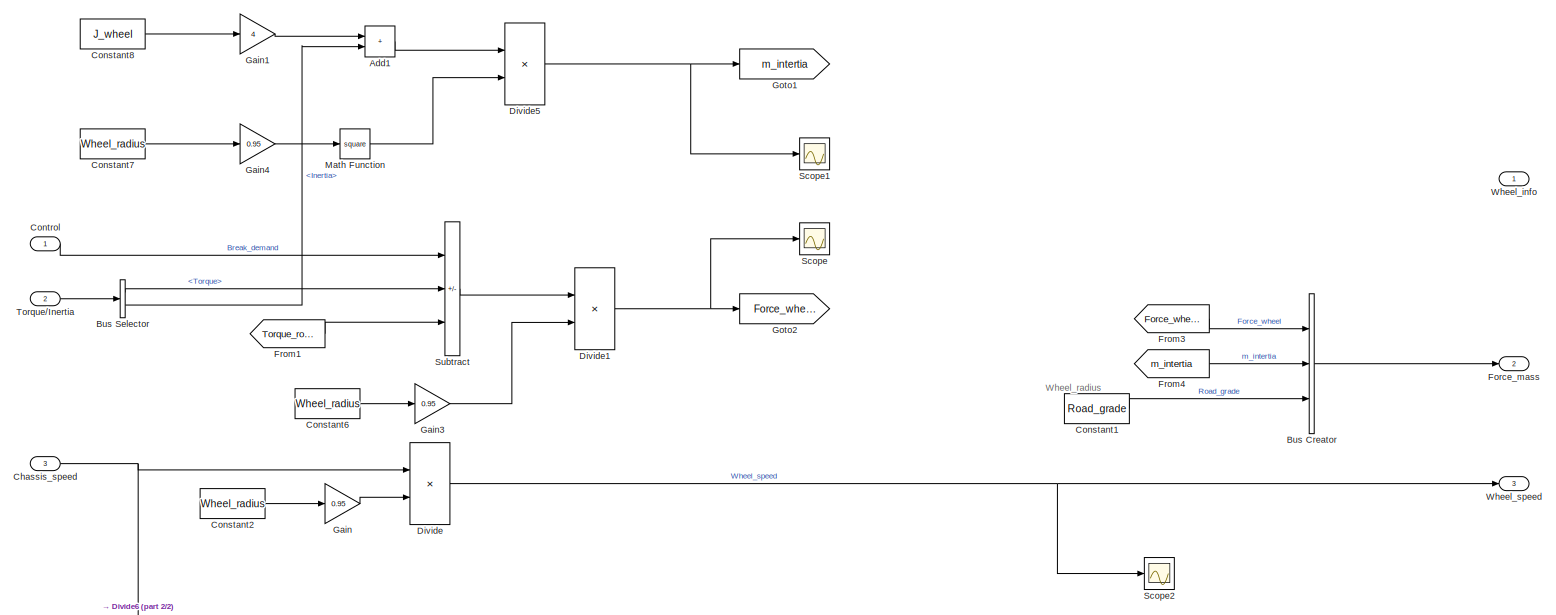
[diagram: Vehicle/Wheel - part 1/2, full width, middle band]
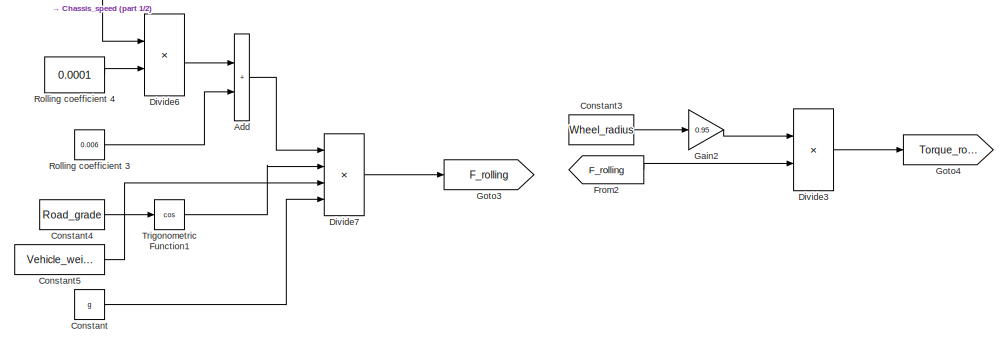
[diagram: Vehicle/Wheel - part 2/2, bottom center region]
BLOCK [SubSystem] Vehicle/Wheel
  Ports = [3, 3]
  RequestExecContextInheritance = off
BLOCK [Sum] Vehicle/Wheel/Add
  IconShape = rectangular
  Ports = [2, 1]
BLOCK [Sum] Vehicle/Wheel/Add1
  IconShape = rectangular
  Ports = [2, 1]
BLOCK [BusCreator] Vehicle/Wheel/Bus Creator
  DisplayOption = bar
  InheritFromInputs = on
  Inputs = 3
  Ports = [3, 1]
BLOCK [BusSelector] Vehicle/Wheel/Bus Selector
  OutputSignals = Torque,Inertia
  Ports = [1, 2]
BLOCK [Inport] Vehicle/Wheel/Chassis_speed
  Port = 3
BLOCK [Constant] Vehicle/Wheel/Constant
  Value = g
BLOCK [Constant] Vehicle/Wheel/Constant1
  Value = Road_grade
BLOCK [Constant] Vehicle/Wheel/Constant2
  Value = Wheel_radius
BLOCK [Constant] Vehicle/Wheel/Constant3
  Value = Wheel_radius
BLOCK [Constant] Vehicle/Wheel/Constant4
  Value = Road_grade
BLOCK [Constant] Vehicle/Wheel/Constant5
  Value = Vehicle_weight
BLOCK [Constant] Vehicle/Wheel/Constant6
  Value = Wheel_radius
BLOCK [Constant] Vehicle/Wheel/Constant7
  Value = Wheel_radius
BLOCK [Constant] Vehicle/Wheel/Constant8
  Value = J_wheel
BLOCK [Inport] Vehicle/Wheel/Control
BLOCK [Product] Vehicle/Wheel/Divide
  Inputs = */
  Ports = [2, 1]
BLOCK [Product] Vehicle/Wheel/Divide1
  Inputs = */
  Ports = [2, 1]
BLOCK [Product] Vehicle/Wheel/Divide3
  Inputs = **
  Ports = [2, 1]
BLOCK [Product] Vehicle/Wheel/Divide5
  Inputs = */
  Ports = [2, 1]
BLOCK [Product] Vehicle/Wheel/Divide6
  Inputs = **
  Ports = [2, 1]
BLOCK [Product] Vehicle/Wheel/Divide7
  Inputs = ****
  Ports = [4, 1]
BLOCK [Outport] Vehicle/Wheel/Force_mass
  Port = 2
BLOCK [From] Vehicle/Wheel/From1
  GotoTag = Torque_rolling
  TagVisibility = global
BLOCK [From] Vehicle/Wheel/From2
  GotoTag = F_rolling
  TagVisibility = global
BLOCK [From] Vehicle/Wheel/From3
  GotoTag = Force_wheel
  TagVisibility = global
BLOCK [From] Vehicle/Wheel/From4
  GotoTag = m_intertia
  TagVisibility = global
BLOCK [Gain] Vehicle/Wheel/Gain
  Gain = 0.95
BLOCK [Gain] Vehicle/Wheel/Gain1
  Gain = 4
BLOCK [Gain] Vehicle/Wheel/Gain2
  Gain = 0.95
BLOCK [Gain] Vehicle/Wheel/Gain3
  Gain = 0.95
BLOCK [Gain] Vehicle/Wheel/Gain4
  Gain = 0.95
BLOCK [Goto] Vehicle/Wheel/Goto1
  GotoTag = m_intertia
  TagVisibility = global
BLOCK [Goto] Vehicle/Wheel/Goto2
  GotoTag = Force_wheel
  TagVisibility = global
BLOCK [Goto] Vehicle/Wheel/Goto3
  GotoTag = F_rolling
  TagVisibility = global
BLOCK [Goto] Vehicle/Wheel/Goto4
  GotoTag = Torque_rolling
  TagVisibility = global
BLOCK [Math] Vehicle/Wheel/Math Function
  Operator = square
  Ports = [1, 1]
BLOCK [Constant] Vehicle/Wheel/Rolling coefficient 3
  Value = 0.006
BLOCK [Constant] Vehicle/Wheel/Rolling coefficient 4
  Value = 0.0001
BLOCK [Scope] Vehicle/Wheel/Scope
  Floating = off
  NameLocation = top
  NumInputPorts = 1
  Ports = [1]
  ScopeSpecificationString = Simulink.scopes.TimeScopeBlockCfg('CurrentConfiguration', extmgr.ConfigurationSet(extmgr.Configuration('Core','General UI',true),extmgr.Configuration('Core','Source UI',true),extmgr.Configuration('Sources','WiredSimulink',true,'DataLoggingVariableName','ScopeData15'),extmgr.Configuration('Visuals','Time Domain',true),extmgr.Configuration('Tools','Plot Navigation',true),extmgr.Configuration('Tools'...<+41ch>
BLOCK [Scope] Vehicle/Wheel/Scope1
  Floating = off
  NameLocation = top
  NumInputPorts = 1
  Ports = [1]
  ScopeSpecificationString = Simulink.scopes.TimeScopeBlockCfg('CurrentConfiguration', extmgr.ConfigurationSet(extmgr.Configuration('Core','General UI',true),extmgr.Configuration('Core','Source UI',true),extmgr.Configuration('Sources','WiredSimulink',true,'DataLoggingVariableName','ScopeData16'),extmgr.Configuration('Visuals','Time Domain',true),extmgr.Configuration('Tools','Plot Navigation',true),extmgr.Configuration('Tools'...<+41ch>
BLOCK [Scope] Vehicle/Wheel/Scope2
  Floating = off
  NumInputPorts = 1
  Ports = [1]
  ScopeSpecificationString = Simulink.scopes.TimeScopeBlockCfg('CurrentConfiguration', extmgr.ConfigurationSet(extmgr.Configuration('Core','General UI',true),extmgr.Configuration('Core','Source UI',true),extmgr.Configuration('Sources','WiredSimulink',true,'DataLoggingVariableName','ScopeData4'),extmgr.Configuration('Visuals','Time Domain',true,'SerializedDisplays',{struct('MinYLimReal','-14.60973','MaxYLimReal','131.47259','Y...<+1380ch>
BLOCK [Sum] Vehicle/Wheel/Subtract
  IconShape = rectangular
  Inputs = ++-
  Ports = [3, 1]
BLOCK [Inport] Vehicle/Wheel/Torque//Inertia
  Port = 2
BLOCK [Trigonometry] Vehicle/Wheel/Trigonometric Function1
  Operator = cos
  Ports = [1, 1]
BLOCK [Outport] Vehicle/Wheel/Wheel_info
  NameLocation = left
BLOCK [Outport] Vehicle/Wheel/Wheel_speed
  Port = 3
ANNOTATION Vehicle/Wheel: Wheel_radius
LINE Clock:1 -> To Workspace:1
LINE Controller/1-D Lookup Table1:1 -> Controller/MinMax:3
LINE Controller/1-D Lookup Table2:1 -> Controller/Product1:2
LINE Controller/1-D Lookup Table3:1 -> Controller/MinMax1:2
LINE Controller/1-D Lookup Table:1 -> Controller/Product:2
LINE Controller/Add1:1 -> Controller/Goto1:1
NET Controller/Add:1 -> Controller/Goto:1, Controller/Scope:1
LINE Controller/Bus Creator:1 -> Controller/C_out:1
NET Controller/Bus Selector1:1 -> Controller/1-D Lookup Table2:1, Controller/1-D Lookup Table:1
NET Controller/Bus Selector1:2 -> Controller/1-D Lookup Table1:1, Controller/1-D Lookup Table3:1
LINE Controller/Bus Selector:1 -> Controller/Gain:1
NET Controller/Bus Selector:2 -> Controller/Add1:1, Controller/Gain5:1
LINE Controller/Constant:1 -> Controller/Gain4:1
LINE Controller/D_out:1 -> Controller/Bus Selector:1
LINE Controller/From1:1 -> Controller/Bus Creator:2
LINE Controller/From:1 -> Controller/Bus Creator:1
LINE Controller/Gain1:1 -> Controller/Gain2:1
LINE Controller/Gain2:1 -> Controller/Product:1
LINE Controller/Gain3:1 -> Controller/Gain1:1
LINE Controller/Gain4:1 -> Controller/Gain3:1
LINE Controller/Gain5:1 -> Controller/Product1:1
LINE Controller/Gain6:1 -> Controller/Add1:2
LINE Controller/Gain:1 -> Controller/MinMax:1
NET Controller/MinMax1:1 -> Controller/Add:2, Controller/Gain6:1
LINE Controller/MinMax:1 -> Controller/Add:1
LINE Controller/Product1:1 -> Controller/MinMax1:1
LINE Controller/Product:1 -> Controller/MinMax:2
LINE Controller/V_out:1 -> Controller/Bus Selector1:1
LINE Controller:1 -> Vehicle:1
NET Driver/Bus Creator:1 -> Driver/D_out:1, Driver/To workspace:1
NET Driver/Bus Selector:1 -> Driver/Plant:2, Driver/Scope1:1
NET Driver/Drive_cycle:1 -> Driver/Plant:1, Driver/Scope:1
NET Driver/Plant/Add:1 -> Driver/Plant/Saturation1:1, Driver/Plant/Saturation:1, Driver/Plant/Scope1:1
NET Driver/Plant/Chasis_speed:1 -> Driver/Plant/Subtract:2, Driver/Plant/Vehicle speed controller:1
NET Driver/Plant/Drive_cycle:1 -> Driver/Plant/Dyno_torque_loss:1, Driver/Plant/Linear_speed_demand:1, Driver/Plant/Scope5:1, Driver/Plant/Subtract:1, Driver/Plant/Vehicle speed controller:2
LINE Driver/Plant/Dyno_torque_loss/Add1:1 -> Driver/Plant/Dyno_torque_loss/Goto:1
NET Driver/Plant/Dyno_torque_loss/Add:1 -> Driver/Plant/Dyno_torque_loss/Product1:2, Driver/Plant/Dyno_torque_loss/Scope:1
LINE Driver/Plant/Dyno_torque_loss/Constant1:1 -> Driver/Plant/Dyno_torque_loss/Product:1
LINE Driver/Plant/Dyno_torque_loss/Constant:1 -> Driver/Plant/Dyno_torque_loss/Product1:1
NET Driver/Plant/Dyno_torque_loss/Derivative:1 -> Driver/Plant/Dyno_torque_loss/Product:2, Driver/Plant/Dyno_torque_loss/Scope2:1
LINE Driver/Plant/Dyno_torque_loss/From1:1 -> Driver/Plant/Dyno_torque_loss/Add1:1
LINE Driver/Plant/Dyno_torque_loss/From2:1 -> Driver/Plant/Dyno_torque_loss/Add1:2
LINE Driver/Plant/Dyno_torque_loss/From3:1 -> Driver/Plant/Dyno_torque_loss/Add1:3
LINE Driver/Plant/Dyno_torque_loss/From:1 -> Driver/Plant/Dyno_torque_loss/Add:1
NET Driver/Plant/Dyno_torque_loss/Linear_speed_demand:1 -> Driver/Plant/Dyno_torque_loss/Derivative:1, Driver/Plant/Dyno_torque_loss/Scope3:1
LINE Driver/Plant/Dyno_torque_loss/Product1:1 -> Driver/Plant/Dyno_torque_loss/Torque_loss:1
NET Driver/Plant/Dyno_torque_loss/Product:1 -> Driver/Plant/Dyno_torque_loss/Add:2, Driver/Plant/Dyno_torque_loss/Scope1:1
NET Driver/Plant/Dyno_torque_loss:1 -> Driver/Plant/Add:2, Driver/Plant/Scope3:1
NET Driver/Plant/Saturation1:1 -> Driver/Plant/Scope4:1, Driver/Plant/Torque_break_demand:1
NET Driver/Plant/Saturation:1 -> Driver/Plant/Scope2:1, Driver/Plant/Torque_acc_demand:1
LINE Driver/Plant/Subtract:1 -> Driver/Plant/Vehicle speed controller:3
LINE Driver/Plant/Vehicle speed controller/Add:1 -> Driver/Plant/Vehicle speed controller/Delta_torque:1
LINE Driver/Plant/Vehicle speed controller/Chasis_speed:1 -> Driver/Plant/Vehicle speed controller/Relational Operator:1
LINE Driver/Plant/Vehicle speed controller/Constant:1 -> Driver/Plant/Vehicle speed controller/Relational Operator:2
NET Driver/Plant/Vehicle speed controller/Delta speed:1 -> Driver/Plant/Vehicle speed controller/Integrator:1, Driver/Plant/Vehicle speed controller/P:1
LINE Driver/Plant/Vehicle speed controller/I:1 -> Driver/Plant/Vehicle speed controller/Add:2
LINE Driver/Plant/Vehicle speed controller/Integrator:1 -> Driver/Plant/Vehicle speed controller/I:1
LINE Driver/Plant/Vehicle speed controller/P:1 -> Driver/Plant/Vehicle speed controller/Add:1
LINE Driver/Plant/Vehicle speed controller/Relational Operator:1 -> Driver/Plant/Vehicle speed controller/Integrator:2
NET Driver/Plant/Vehicle speed controller:1 -> Driver/Plant/Add:1, Driver/Plant/Scope:1
LINE Driver/Plant:1 -> Driver/Bus Creator:1
LINE Driver/Plant:2 -> Driver/Bus Creator:2
LINE Driver/Plant:3 -> Driver/Bus Creator:3
LINE Driver/To workspace/Bus Selector:1 -> Driver/To workspace/To Workspace:1
LINE Driver/To workspace/Bus Selector:2 -> Driver/To workspace/To Workspace3:1
LINE Driver/To workspace/Bus Selector:3 -> Driver/To workspace/To Workspace2:1
LINE Driver/To workspace/In1:1 -> Driver/To workspace/Bus Selector:1
LINE Driver/V_out:1 -> Driver/Bus Selector:1
LINE Driver:1 -> Controller:1
LINE From Workspace:1 -> Gain:1
NET Gain:1 -> Driver:1, Scope:1
NET Memory:1 -> Controller:2, Driver:2
LINE Vehicle/Add:1 -> Vehicle/Battery:1
LINE Vehicle/Battery/Bus Creator:1 -> Vehicle/Battery/Battery_info:1
LINE Vehicle/Battery/Constant:1 -> Vehicle/Battery/Relational Operator:2
NET Vehicle/Battery/Current:1 -> Vehicle/Battery/Goto:1, Vehicle/Battery/SOC_caculation:1, Vehicle/Battery/To Workspace1:1, Vehicle/Battery/Volt_caculation:2
LINE Vehicle/Battery/From Workspace1:1 -> Vehicle/Battery/Product1:2
LINE Vehicle/Battery/From Workspace:1 -> Vehicle/Battery/Product1:1
LINE Vehicle/Battery/From1:1 -> Vehicle/Battery/Bus Creator:5
LINE Vehicle/Battery/From2:1 -> Vehicle/Battery/Product:1
LINE Vehicle/Battery/From3:1 -> Vehicle/Battery/Bus Creator:2
LINE Vehicle/Battery/From4:1 -> Vehicle/Battery/Bus Creator:4
LINE Vehicle/Battery/From5:1 -> Vehicle/Battery/Bus Creator:3
LINE Vehicle/Battery/From6:1 -> Vehicle/Battery/Product:2
LINE Vehicle/Battery/From:1 -> Vehicle/Battery/Bus Creator:1
LINE Vehicle/Battery/Integrator1:1 -> Vehicle/Battery/To Workspace3:1
LINE Vehicle/Battery/Integrator:1 -> Vehicle/Battery/To Workspace2:1
LINE Vehicle/Battery/Product1:1 -> Vehicle/Battery/Integrator1:1
LINE Vehicle/Battery/Product:1 -> Vehicle/Battery/Integrator:1
LINE Vehicle/Battery/Relational Operator:1 -> Vehicle/Battery/Stop Simulation:1
LINE Vehicle/Battery/SOC_caculation/Add:1 -> Vehicle/Battery/SOC_caculation/Divide:1
NET Vehicle/Battery/SOC_caculation/Constant1:1 -> Vehicle/Battery/SOC_caculation/Divide:2, Vehicle/Battery/SOC_caculation/Product:2
LINE Vehicle/Battery/SOC_caculation/Constant:1 -> Vehicle/Battery/SOC_caculation/Product:1
NET Vehicle/Battery/SOC_caculation/Current:1 -> Vehicle/Battery/SOC_caculation/Gain:1, Vehicle/Battery/SOC_caculation/Scope1:1
LINE Vehicle/Battery/SOC_caculation/Divide:1 -> Vehicle/Battery/SOC_caculation/Saturation:1
LINE Vehicle/Battery/SOC_caculation/Gain1:1 -> Vehicle/Battery/SOC_caculation/Integrator:1
LINE Vehicle/Battery/SOC_caculation/Gain:1 -> Vehicle/Battery/SOC_caculation/Gain1:1
NET Vehicle/Battery/SOC_caculation/Integrator:1 -> Vehicle/Battery/SOC_caculation/Add:1, Vehicle/Battery/SOC_caculation/Scope2:1
LINE Vehicle/Battery/SOC_caculation/Product:1 -> Vehicle/Battery/SOC_caculation/Add:2
NET Vehicle/Battery/SOC_caculation/Saturation:1 -> Vehicle/Battery/SOC_caculation/SOC:1, Vehicle/Battery/SOC_caculation/Scope:1, Vehicle/Battery/SOC_caculation/To Workspace:1
NET Vehicle/Battery/SOC_caculation:1 -> Vehicle/Battery/Goto1:1, Vehicle/Battery/Relational Operator:1, Vehicle/Battery/Volt_caculation:1
LINE Vehicle/Battery/Volt_caculation/1-D Lookup Table1:1 -> Vehicle/Battery/Volt_caculation/Switch:1
LINE Vehicle/Battery/Volt_caculation/1-D Lookup Table2:1 -> Vehicle/Battery/Volt_caculation/Switch:3
NET Vehicle/Battery/Volt_caculation/1-D Lookup Table:1 -> Vehicle/Battery/Volt_caculation/Goto:1, Vehicle/Battery/Volt_caculation/Subtract:1
NET Vehicle/Battery/Volt_caculation/Current:1 -> Vehicle/Battery/Volt_caculation/Gain:1, Vehicle/Battery/Volt_caculation/Switch1:1, Vehicle/Battery/Volt_caculation/Switch1:2
LINE Vehicle/Battery/Volt_caculation/From:1 -> Vehicle/Battery/Volt_caculation/Voltage:1
LINE Vehicle/Battery/Volt_caculation/Gain:1 -> Vehicle/Battery/Volt_caculation/Switch1:3
LINE Vehicle/Battery/Volt_caculation/Product1:1 -> Vehicle/Battery/Volt_caculation/Subtract:2
NET Vehicle/Battery/Volt_caculation/SOC:1 -> Vehicle/Battery/Volt_caculation/1-D Lookup Table1:1, Vehicle/Battery/Volt_caculation/1-D Lookup Table2:1, Vehicle/Battery/Volt_caculation/1-D Lookup Table:1
LINE Vehicle/Battery/Volt_caculation/Subtract:1 -> Vehicle/Battery/Volt_caculation/Goto2:1
NET Vehicle/Battery/Volt_caculation/Switch1:1 -> Vehicle/Battery/Volt_caculation/Product1:1, Vehicle/Battery/Volt_caculation/Switch:2
NET Vehicle/Battery/Volt_caculation/Switch:1 -> Vehicle/Battery/Volt_caculation/Goto1:1, Vehicle/Battery/Volt_caculation/Product1:2
NET Vehicle/Battery/Volt_caculation:1 -> Vehicle/Battery/Goto2:1, Vehicle/Battery/Scope:1, Vehicle/Battery/To Workspace:1, Vehicle/Battery/Voltage:1
LINE Vehicle/Battery:1 -> Vehicle/Goto6:1
NET Vehicle/Battery:2 -> Vehicle/Electrical _accessories:1, Vehicle/Motor:2
LINE Vehicle/Bus Creator:1 -> Vehicle/V_out:1
LINE Vehicle/Bus Selector1:1 -> Vehicle/Motor:1
LINE Vehicle/Bus Selector:1 -> Vehicle/Wheel:1
LINE Vehicle/C_out:1 -> Vehicle/Goto:1
NET Vehicle/Chassis/Add:1 -> Vehicle/Chassis/Goto:1, Vehicle/Chassis/Scope:1
LINE Vehicle/Chassis/Bus Creator:1 -> Vehicle/Chassis/Chassis_info:1
LINE Vehicle/Chassis/Bus Selector:1 -> Vehicle/Chassis/Add:2
LINE Vehicle/Chassis/Bus Selector:2 -> Vehicle/Chassis/Trigonometric Function:1
LINE Vehicle/Chassis/Bus Selector:3 -> Vehicle/Chassis/Subtract:1
LINE Vehicle/Chassis/Coefficient of drag:1 -> Vehicle/Chassis/Frontal area:1
LINE Vehicle/Chassis/Constant2:1 -> Vehicle/Chassis/Product:1
LINE Vehicle/Chassis/Constant3:1 -> Vehicle/Chassis/Product:2
LINE Vehicle/Chassis/Constant:1 -> Vehicle/Chassis/Add:1
NET Vehicle/Chassis/Divide:1 -> Vehicle/Chassis/Goto5:1, Vehicle/Chassis/Scope3:1
LINE Vehicle/Chassis/Force_mass:1 -> Vehicle/Chassis/Bus Selector:1
LINE Vehicle/Chassis/From1:1 -> Vehicle/Chassis/Subtract:3
LINE Vehicle/Chassis/From2:1 -> Vehicle/Chassis/Math Function:1
LINE Vehicle/Chassis/From3:1 -> Vehicle/Chassis/Divide:2
LINE Vehicle/Chassis/From4:1 -> Vehicle/Chassis/Divide:1
LINE Vehicle/Chassis/From5:1 -> Vehicle/Chassis/Integrator:1
LINE Vehicle/Chassis/From6:1 -> Vehicle/Chassis/Bus Creator:1
LINE Vehicle/Chassis/From7:1 -> Vehicle/Chassis/Bus Creator:2
LINE Vehicle/Chassis/From8:1 -> Vehicle/Chassis/Bus Creator:3
LINE Vehicle/Chassis/From9:1 -> Vehicle/Chassis/Bus Creator:4
LINE Vehicle/Chassis/From:1 -> Vehicle/Chassis/Subtract:2
LINE Vehicle/Chassis/Frontal area:1 -> Vehicle/Chassis/Goto2:1
NET Vehicle/Chassis/Integrator:1 -> Vehicle/Chassis/Chassis_speed:1, Vehicle/Chassis/Goto4:1, Vehicle/Chassis/Scope4:1, Vehicle/Chassis/To Workspace:1
LINE Vehicle/Chassis/Math Function:1 -> Vehicle/Chassis/gain:1
NET Vehicle/Chassis/Product:1 -> Vehicle/Chassis/Goto1:1, Vehicle/Chassis/Scope1:1
NET Vehicle/Chassis/Subtract:1 -> Vehicle/Chassis/Goto3:1, Vehicle/Chassis/Scope2:1
LINE Vehicle/Chassis/Trigonometric Function:1 -> Vehicle/Chassis/Product:3
LINE Vehicle/Chassis/air density:1 -> Vehicle/Chassis/Coefficient of drag:1
LINE Vehicle/Chassis/gain:1 -> Vehicle/Chassis/air density:1
LINE Vehicle/Chassis:1 -> Vehicle/Goto1:1
LINE Vehicle/Chassis:2 -> Vehicle/Wheel:3
LINE Vehicle/Electrical _accessories/Constant:1 -> Vehicle/Electrical _accessories/Divider:1
LINE Vehicle/Electrical _accessories/Divider/Bus Creator:1 -> Vehicle/Electrical _accessories/Divider/Interpreted MATLAB Function:1
LINE Vehicle/Electrical _accessories/Divider/Current:1 -> Vehicle/Electrical _accessories/Divider/Bus Creator:1
LINE Vehicle/Electrical _accessories/Divider/Interpreted MATLAB Function:1 -> Vehicle/Electrical _accessories/Divider/Out1:1
LINE Vehicle/Electrical _accessories/Divider/Voltage:1 -> Vehicle/Electrical _accessories/Divider/Bus Creator:2
LINE Vehicle/Electrical _accessories/Divider:1 -> Vehicle/Electrical _accessories/Current:1
LINE Vehicle/Electrical _accessories/Voltage:1 -> Vehicle/Electrical _accessories/Divider:2
LINE Vehicle/Electrical _accessories:1 -> Vehicle/Goto5:1
NET Vehicle/Electrical _accessories:2 -> Vehicle/Add:2, Vehicle/Scope:1
LINE Vehicle/Final_drive/Add:1 -> Vehicle/Final_drive/Goto1:1
LINE Vehicle/Final_drive/Bus Creator:1 -> Vehicle/Final_drive/Torque//Inertia:1
NET Vehicle/Final_drive/Bus Selector:1 -> Vehicle/Final_drive/Gain:1, Vehicle/Final_drive/Sign:1
LINE Vehicle/Final_drive/Bus Selector:2 -> Vehicle/Final_drive/Divide2:1
NET Vehicle/Final_drive/Constant2:1 -> Vehicle/Final_drive/Divide1:1, Vehicle/Final_drive/Divider:2
LINE Vehicle/Final_drive/Constant3:1 -> Vehicle/Final_drive/Math Function:1
LINE Vehicle/Final_drive/Constant4:1 -> Vehicle/Final_drive/Add:2
LINE Vehicle/Final_drive/Divide1:1 -> Vehicle/Final_drive/Switch:1
LINE Vehicle/Final_drive/Divide2:1 -> Vehicle/Final_drive/Add:1
LINE Vehicle/Final_drive/Divider/Bus Creator:1 -> Vehicle/Final_drive/Divider/Interpreted MATLAB Function:1
LINE Vehicle/Final_drive/Divider/Interpreted MATLAB Function:1 -> Vehicle/Final_drive/Divider/Out1:1
LINE Vehicle/Final_drive/Divider/l1:1 -> Vehicle/Final_drive/Divider/Bus Creator:1
LINE Vehicle/Final_drive/Divider/l2:1 -> Vehicle/Final_drive/Divider/Bus Creator:2
LINE Vehicle/Final_drive/Divider:1 -> Vehicle/Final_drive/Switch:3
LINE Vehicle/Final_drive/From1:1 -> Vehicle/Final_drive/Bus Creator:2
LINE Vehicle/Final_drive/From:1 -> Vehicle/Final_drive/Bus Creator:1
NET Vehicle/Final_drive/Gain1:1 -> Vehicle/Final_drive/Scope1:1, Vehicle/Final_drive/fd_speed:1
NET Vehicle/Final_drive/Gain:1 -> Vehicle/Final_drive/Divide1:2, Vehicle/Final_drive/Divider:1
LINE Vehicle/Final_drive/Math Function:1 -> Vehicle/Final_drive/Divide2:2
LINE Vehicle/Final_drive/Sign:1 -> Vehicle/Final_drive/Switch:2
NET Vehicle/Final_drive/Switch:1 -> Vehicle/Final_drive/Goto:1, Vehicle/Final_drive/Scope2:1
LINE Vehicle/Final_drive/Torque//Inertia :1 -> Vehicle/Final_drive/Bus Selector:1
LINE Vehicle/Final_drive/Wheel_speed:1 -> Vehicle/Final_drive/Gain1:1
LINE Vehicle/Final_drive:1 -> Vehicle/Goto3:1
LINE Vehicle/Final_drive:2 -> Vehicle/Wheel:2
LINE Vehicle/Final_drive:3 -> Vehicle/Motor:3
LINE Vehicle/From1:1 -> Vehicle/Bus Creator:2
LINE Vehicle/From2:1 -> Vehicle/Bus Creator:3
LINE Vehicle/From3:1 -> Vehicle/Bus Creator:6
LINE Vehicle/From4:1 -> Vehicle/Bus Creator:4
LINE Vehicle/From5:1 -> Vehicle/Bus Creator:5
LINE Vehicle/From6:1 -> Vehicle/Bus Selector:1
LINE Vehicle/From7:1 -> Vehicle/Bus Selector1:1
LINE Vehicle/From:1 -> Vehicle/Bus Creator:1
LINE Vehicle/Motor/1-D Lookup Table1:1 -> Vehicle/Motor/Saturation Dynamic:3
LINE Vehicle/Motor/1-D Lookup Table:1 -> Vehicle/Motor/Saturation Dynamic:1
LINE Vehicle/Motor/Bus Creator1:1 -> Vehicle/Motor/Motor_info:1
LINE Vehicle/Motor/Bus Creator:1 -> Vehicle/Motor/Torque//Inertia :1
LINE Vehicle/Motor/Constant:1 -> Vehicle/Motor/Bus Creator:2
LINE Vehicle/Motor/Divider/Bus Creator:1 -> Vehicle/Motor/Divider/Interpreted MATLAB Function:1
LINE Vehicle/Motor/Divider/Interpreted MATLAB Function:1 -> Vehicle/Motor/Divider/Out1:1
LINE Vehicle/Motor/Divider/Power:1 -> Vehicle/Motor/Divider/Bus Creator:1
LINE Vehicle/Motor/Divider/Voltage:1 -> Vehicle/Motor/Divider/Bus Creator:2
NET Vehicle/Motor/Divider:1 -> Vehicle/Motor/Current:1, Vehicle/Motor/Goto4:1, Vehicle/Motor/Scope:1
NET Vehicle/Motor/Efficiency/2-D Lookup Table:1 -> Vehicle/Motor/Efficiency/Divider:2, Vehicle/Motor/Efficiency/Product1:1, Vehicle/Motor/Efficiency/Scope2:1, Vehicle/Motor/Efficiency/To Workspace:1
LINE Vehicle/Motor/Efficiency/Abs1:1 -> Vehicle/Motor/Efficiency/2-D Lookup Table:1
LINE Vehicle/Motor/Efficiency/Abs:1 -> Vehicle/Motor/Efficiency/2-D Lookup Table:2
LINE Vehicle/Motor/Efficiency/Divider/1:1 -> Vehicle/Motor/Efficiency/Divider/Bus Creator:1
LINE Vehicle/Motor/Efficiency/Divider/2:1 -> Vehicle/Motor/Efficiency/Divider/Bus Creator:2
LINE Vehicle/Motor/Efficiency/Divider/Bus Creator:1 -> Vehicle/Motor/Efficiency/Divider/Interpreted MATLAB Function:1
LINE Vehicle/Motor/Efficiency/Divider/Interpreted MATLAB Function:1 -> Vehicle/Motor/Efficiency/Divider/Out1:1
LINE Vehicle/Motor/Efficiency/Divider:1 -> Vehicle/Motor/Efficiency/Switch:1
LINE Vehicle/Motor/Efficiency/Product1:1 -> Vehicle/Motor/Efficiency/Switch:3
NET Vehicle/Motor/Efficiency/Product:1 -> Vehicle/Motor/Efficiency/Divider:1, Vehicle/Motor/Efficiency/Product1:2, Vehicle/Motor/Efficiency/Scope3:1, Vehicle/Motor/Efficiency/Sign:1
LINE Vehicle/Motor/Efficiency/Sign:1 -> Vehicle/Motor/Efficiency/Switch:2
LINE Vehicle/Motor/Efficiency/Switch:1 -> Vehicle/Motor/Efficiency/Power:1
NET Vehicle/Motor/Efficiency/Torque:1 -> Vehicle/Motor/Efficiency/Abs1:1, Vehicle/Motor/Efficiency/Product:1, Vehicle/Motor/Efficiency/Scope1:1
NET Vehicle/Motor/Efficiency/fd_speed:1 -> Vehicle/Motor/Efficiency/Abs:1, Vehicle/Motor/Efficiency/Product:2, Vehicle/Motor/Efficiency/Scope:1
NET Vehicle/Motor/Efficiency:1 -> Vehicle/Motor/Divider:1, Vehicle/Motor/Scope3:1
LINE Vehicle/Motor/From1:1 -> Vehicle/Motor/Bus Creator1:3
LINE Vehicle/Motor/From2:1 -> Vehicle/Motor/Bus Creator1:4
LINE Vehicle/Motor/From3:1 -> Vehicle/Motor/Bus Creator1:5
LINE Vehicle/Motor/From4:1 -> Vehicle/Motor/Bus Creator1:2
LINE Vehicle/Motor/From:1 -> Vehicle/Motor/Bus Creator1:1
NET Vehicle/Motor/Memory:1 -> Vehicle/Motor/1-D Lookup Table1:1, Vehicle/Motor/1-D Lookup Table:1
NET Vehicle/Motor/Saturation Dynamic:1 -> Vehicle/Motor/Bus Creator:1, Vehicle/Motor/Efficiency:2, Vehicle/Motor/Goto2:1, Vehicle/Motor/Scope2:1
NET Vehicle/Motor/Torque_command:1 -> Vehicle/Motor/Goto1:1, Vehicle/Motor/Saturation Dynamic:2
NET Vehicle/Motor/Voltage:1 -> Vehicle/Motor/Divider:2, Vehicle/Motor/Goto3:1
NET Vehicle/Motor/fd_speed:1 -> Vehicle/Motor/Efficiency:1, Vehicle/Motor/Goto:1, Vehicle/Motor/Memory:1, Vehicle/Motor/Scope1:1
LINE Vehicle/Motor:1 -> Vehicle/Goto4:1
NET Vehicle/Motor:2 -> Vehicle/Add:1, Vehicle/Scope1:1
LINE Vehicle/Motor:3 -> Vehicle/Final_drive:1
LINE Vehicle/Wheel/Add1:1 -> Vehicle/Wheel/Divide5:1
LINE Vehicle/Wheel/Add:1 -> Vehicle/Wheel/Divide7:1
LINE Vehicle/Wheel/Bus Creator:1 -> Vehicle/Wheel/Force_mass:1
LINE Vehicle/Wheel/Bus Selector:1 -> Vehicle/Wheel/Subtract:2
LINE Vehicle/Wheel/Bus Selector:2 -> Vehicle/Wheel/Add1:2
NET Vehicle/Wheel/Chassis_speed:1 -> Vehicle/Wheel/Divide6:1, Vehicle/Wheel/Divide:1
LINE Vehicle/Wheel/Constant1:1 -> Vehicle/Wheel/Bus Creator:3
LINE Vehicle/Wheel/Constant2:1 -> Vehicle/Wheel/Gain:1
LINE Vehicle/Wheel/Constant3:1 -> Vehicle/Wheel/Gain2:1
LINE Vehicle/Wheel/Constant4:1 -> Vehicle/Wheel/Trigonometric Function1:1
LINE Vehicle/Wheel/Constant5:1 -> Vehicle/Wheel/Divide7:3
LINE Vehicle/Wheel/Constant6:1 -> Vehicle/Wheel/Gain3:1
LINE Vehicle/Wheel/Constant7:1 -> Vehicle/Wheel/Gain4:1
LINE Vehicle/Wheel/Constant8:1 -> Vehicle/Wheel/Gain1:1
LINE Vehicle/Wheel/Constant:1 -> Vehicle/Wheel/Divide7:4
LINE Vehicle/Wheel/Control:1 -> Vehicle/Wheel/Subtract:1
NET Vehicle/Wheel/Divide1:1 -> Vehicle/Wheel/Goto2:1, Vehicle/Wheel/Scope:1
LINE Vehicle/Wheel/Divide3:1 -> Vehicle/Wheel/Goto4:1
NET Vehicle/Wheel/Divide5:1 -> Vehicle/Wheel/Goto1:1, Vehicle/Wheel/Scope1:1
LINE Vehicle/Wheel/Divide6:1 -> Vehicle/Wheel/Add:1
LINE Vehicle/Wheel/Divide7:1 -> Vehicle/Wheel/Goto3:1
NET Vehicle/Wheel/Divide:1 -> Vehicle/Wheel/Scope2:1, Vehicle/Wheel/Wheel_speed:1
LINE Vehicle/Wheel/From1:1 -> Vehicle/Wheel/Subtract:3
LINE Vehicle/Wheel/From2:1 -> Vehicle/Wheel/Divide3:2
LINE Vehicle/Wheel/From3:1 -> Vehicle/Wheel/Bus Creator:1
LINE Vehicle/Wheel/From4:1 -> Vehicle/Wheel/Bus Creator:2
LINE Vehicle/Wheel/Gain1:1 -> Vehicle/Wheel/Add1:1
LINE Vehicle/Wheel/Gain2:1 -> Vehicle/Wheel/Divide3:1
LINE Vehicle/Wheel/Gain3:1 -> Vehicle/Wheel/Divide1:2
LINE Vehicle/Wheel/Gain4:1 -> Vehicle/Wheel/Math Function:1
LINE Vehicle/Wheel/Gain:1 -> Vehicle/Wheel/Divide:2
LINE Vehicle/Wheel/Math Function:1 -> Vehicle/Wheel/Divide5:2
LINE Vehicle/Wheel/Rolling coefficient 3:1 -> Vehicle/Wheel/Add:2
LINE Vehicle/Wheel/Rolling coefficient 4:1 -> Vehicle/Wheel/Divide6:2
LINE Vehicle/Wheel/Subtract:1 -> Vehicle/Wheel/Divide1:1
LINE Vehicle/Wheel/Torque//Inertia:1 -> Vehicle/Wheel/Bus Selector:1
LINE Vehicle/Wheel/Trigonometric Function1:1 -> Vehicle/Wheel/Divide7:2
LINE Vehicle/Wheel:1 -> Vehicle/Goto2:1
LINE Vehicle/Wheel:2 -> Vehicle/Chassis:1
LINE Vehicle/Wheel:3 -> Vehicle/Final_drive:2
LINE Vehicle:1 -> Memory:1
note: NET lines group one-source signal fan-out (src -> all destinations, sorted); 1:1 wires keep LINE
